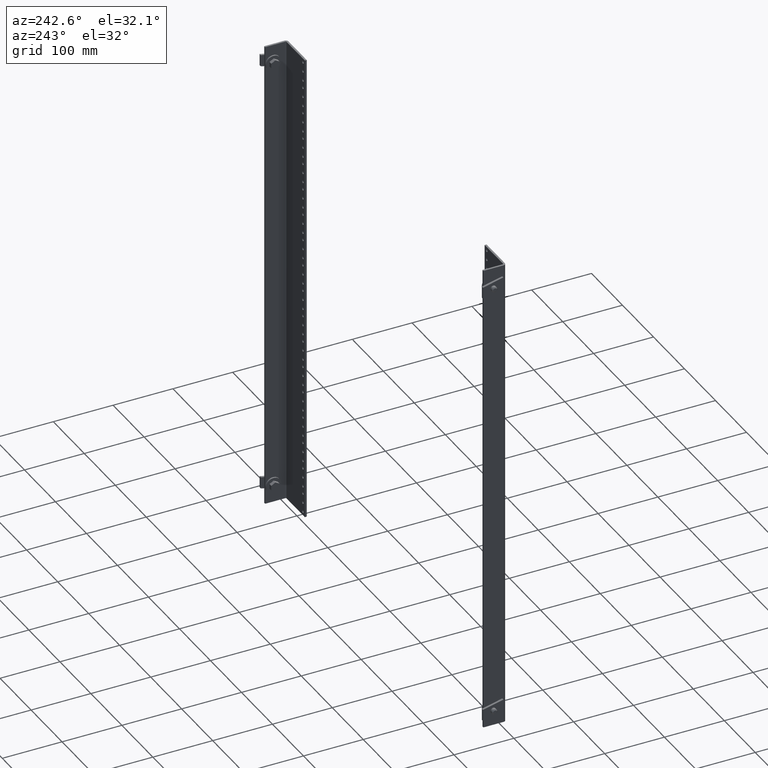
[diagram: clean part render]
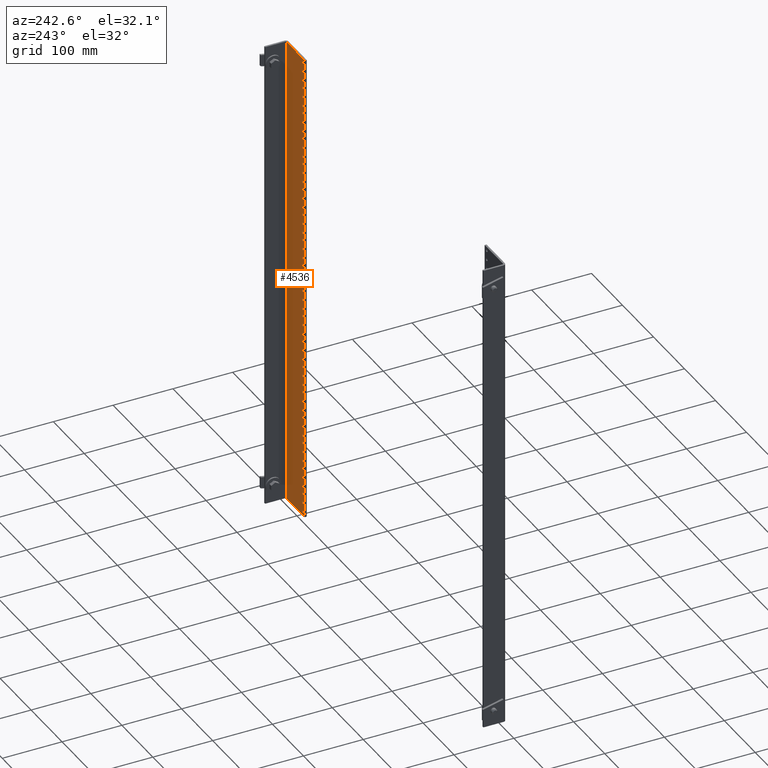
[diagram: same view with one face highlighted and labeled with its STEP entity id]
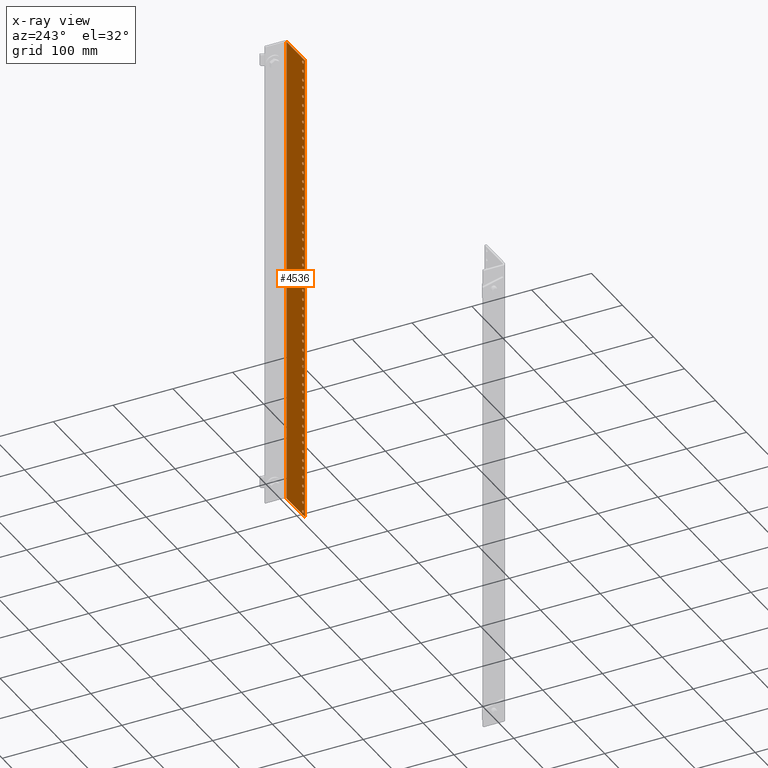
[diagram: x-ray of the same camera — body ghosted, the highlighted face saturated]
A machine part, auxiliary view. The second image highlights one B-rep face of the part: STEP entity #4536.
The next image is the same camera in x-ray: the body ghosted, the highlighted face saturated — about 0% of this face is hidden behind the body in this view.
In plain terms, the highlighted planar face has unit normal (-0, -1, 0).
Its self-contained STEP definition (entity closure, byte-faithful):
#1 = CIRCLE ( 'NONE', #6707, 0.08850000000000002309 ) ;
#54 = EDGE_LOOP ( 'NONE', ( #966, #1590 ) ) ;
#62 = FACE_BOUND ( 'NONE', #54, .T. ) ;
#73 = EDGE_LOOP ( 'NONE', ( #1296, #7900 ) ) ;
#93 = VERTEX_POINT ( 'NONE', #12416 ) ;
#95 = VECTOR ( 'NONE', #11698, 39.37007874015748143 ) ;
#115 = DIRECTION ( 'NONE',  ( 1.000000000000000000, 0.0000000000000000000, 0.0000000000000000000 ) ) ;
#120 = EDGE_LOOP ( 'NONE', ( #3377, #7671 ) ) ;
#123 = EDGE_CURVE ( 'NONE', #5694, #12536, #11691, .T. ) ;
#143 = EDGE_CURVE ( 'NONE', #4721, #11474, #5416, .T. ) ;
#153 = CARTESIAN_POINT ( 'NONE',  ( -1.088500000000000467, 0.1250000000000015821, -10.25000000000000178 ) ) ;
#163 = ORIENTED_EDGE ( 'NONE', *, *, #11466, .T. ) ;
#170 = CARTESIAN_POINT ( 'NONE',  ( -1.088499999999999801, 0.1250000000000015821, 3.250000000000000000 ) ) ;
#177 = CIRCLE ( 'NONE', #388, 0.08850000000000002309 ) ;
#183 = VERTEX_POINT ( 'NONE', #2735 ) ;
#213 = VERTEX_POINT ( 'NONE', #9633 ) ;
#222 = DIRECTION ( 'NONE',  ( 1.000000000000000000, 0.0000000000000000000, 0.0000000000000000000 ) ) ;
#223 = CIRCLE ( 'NONE', #5261, 0.08850000000000002309 ) ;
#226 = AXIS2_PLACEMENT_3D ( 'NONE', #7170, #4089, #12156 ) ;
#238 = CARTESIAN_POINT ( 'NONE',  ( -0.9999999999999998890, 0.1250000000000015821, 2.625000000000000000 ) ) ;
#245 = DIRECTION ( 'NONE',  ( -5.551115123125780237E-17, -1.000000000000000000, 1.191965662373347779E-32 ) ) ;
#253 = FACE_BOUND ( 'NONE', #9833, .T. ) ;
#267 = VERTEX_POINT ( 'NONE', #1561 ) ;
#287 = EDGE_CURVE ( 'NONE', #9872, #3295, #573, .T. ) ;
#298 = DIRECTION ( 'NONE',  ( -5.551115123125780237E-17, -1.000000000000000000, 1.191965662373347779E-32 ) ) ;
#300 = EDGE_CURVE ( 'NONE', #11978, #4245, #3732, .T. ) ;
#306 = DIRECTION ( 'NONE',  ( -5.551115123125780237E-17, -1.000000000000000000, 1.191965662373347779E-32 ) ) ;
#321 = ORIENTED_EDGE ( 'NONE', *, *, #4474, .T. ) ;
#344 = CARTESIAN_POINT ( 'NONE',  ( -1.000000000000000444, 0.1250000000000015821, -14.25000000000000000 ) ) ;
#345 = ORIENTED_EDGE ( 'NONE', *, *, #10697, .T. ) ;
#351 = DIRECTION ( 'NONE',  ( -5.551115123125780237E-17, -1.000000000000000000, 1.191965662373347779E-32 ) ) ;
#358 = DIRECTION ( 'NONE',  ( -5.551115123125780237E-17, -1.000000000000000000, 1.191965662373347779E-32 ) ) ;
#363 = ORIENTED_EDGE ( 'NONE', *, *, #3302, .T. ) ;
#375 = AXIS2_PLACEMENT_3D ( 'NONE', #10785, #727, #11697 ) ;
#387 = EDGE_CURVE ( 'NONE', #11846, #12211, #11278, .T. ) ;
#388 = AXIS2_PLACEMENT_3D ( 'NONE', #11513, #6655, #5613 ) ;
#392 = EDGE_LOOP ( 'NONE', ( #7959, #2369 ) ) ;
#425 = EDGE_CURVE ( 'NONE', #1007, #5927, #4787, .T. ) ;
#427 = DIRECTION ( 'NONE',  ( -5.551115123125780237E-17, -1.000000000000000000, 1.191965662373347779E-32 ) ) ;
#432 = CARTESIAN_POINT ( 'NONE',  ( -1.000000000000000222, 0.1250000000000015821, -6.750000000000000000 ) ) ;
#451 = ORIENTED_EDGE ( 'NONE', *, *, #4386, .T. ) ;
#455 = VERTEX_POINT ( 'NONE', #5488 ) ;
#474 = CARTESIAN_POINT ( 'NONE',  ( -1.000000000000000444, 0.1250000000000015821, -14.87500000000000178 ) ) ;
#481 = DIRECTION ( 'NONE',  ( -5.551115123125780237E-17, -1.000000000000000000, 1.191965662373347779E-32 ) ) ;
#493 = DIRECTION ( 'NONE',  ( -5.551115123125780237E-17, -1.000000000000000000, 1.191965662373347779E-32 ) ) ;
#495 = DIRECTION ( 'NONE',  ( -5.551115123125780237E-17, -1.000000000000000000, 1.191965662373347779E-32 ) ) ;
#527 = ORIENTED_EDGE ( 'NONE', *, *, #6949, .T. ) ;
#528 = CARTESIAN_POINT ( 'NONE',  ( -0.9115000000000004210, 0.1250000000000015821, -13.75000000000000000 ) ) ;
#533 = DIRECTION ( 'NONE',  ( -5.551115123125780237E-17, -1.000000000000000000, 1.191965662373347779E-32 ) ) ;
#542 = EDGE_LOOP ( 'NONE', ( #4425, #3690 ) ) ;
#548 = DIRECTION ( 'NONE',  ( -5.551115123125780237E-17, -1.000000000000000000, 1.191965662373347779E-32 ) ) ;
#573 = CIRCLE ( 'NONE', #5628, 0.08850000000000002309 ) ;
#585 = AXIS2_PLACEMENT_3D ( 'NONE', #11002, #1989, #10072 ) ;
#589 = EDGE_LOOP ( 'NONE', ( #8134, #973 ) ) ;
#596 = VERTEX_POINT ( 'NONE', #2449 ) ;
#608 = EDGE_CURVE ( 'NONE', #596, #1967, #9748, .T. ) ;
#616 = EDGE_CURVE ( 'NONE', #9547, #5640, #177, .T. ) ;
#621 = CIRCLE ( 'NONE', #7151, 0.08850000000000002309 ) ;
#628 = ORIENTED_EDGE ( 'NONE', *, *, #10015, .T. ) ;
#631 = VERTEX_POINT ( 'NONE', #6795 ) ;
#636 = DIRECTION ( 'NONE',  ( -5.551115123125780237E-17, -1.000000000000000000, 1.191965662373347779E-32 ) ) ;
#644 = CIRCLE ( 'NONE', #6323, 0.08850000000000002309 ) ;
#655 = CARTESIAN_POINT ( 'NONE',  ( -1.000000000000000000, 0.1250000000000015821, -0.8750000000000001110 ) ) ;
#694 = EDGE_CURVE ( 'NONE', #13010, #4111, #5842, .T. ) ;
#716 = ORIENTED_EDGE ( 'NONE', *, *, #143, .T. ) ;
#720 = CARTESIAN_POINT ( 'NONE',  ( -0.9114999999999998659, 0.1250000000000015821, 5.500000000000000000 ) ) ;
#722 = CARTESIAN_POINT ( 'NONE',  ( -1.088500000000000245, 0.1250000000000015821, -8.500000000000000000 ) ) ;
#727 = DIRECTION ( 'NONE',  ( -5.551115123125780237E-17, -1.000000000000000000, 1.191965662373347779E-32 ) ) ;
#742 = DIRECTION ( 'NONE',  ( 1.000000000000000000, 0.0000000000000000000, 0.0000000000000000000 ) ) ;
#753 = EDGE_LOOP ( 'NONE', ( #7689, #3333 ) ) ;
#760 = FACE_BOUND ( 'NONE', #10540, .T. ) ;
#771 = AXIS2_PLACEMENT_3D ( 'NONE', #9382, #7289, #3414 ) ;
#775 = EDGE_LOOP ( 'NONE', ( #11868, #2344 ) ) ;
#778 = CARTESIAN_POINT ( 'NONE',  ( -1.088499999999999579, 0.1250000000000015821, 11.37500000000000178 ) ) ;
#782 = DIRECTION ( 'NONE',  ( 1.000000000000000000, 0.0000000000000000000, 0.0000000000000000000 ) ) ;
#786 = DIRECTION ( 'NONE',  ( 1.000000000000000000, 0.0000000000000000000, 0.0000000000000000000 ) ) ;
#798 = DIRECTION ( 'NONE',  ( 1.000000000000000000, 0.0000000000000000000, 0.0000000000000000000 ) ) ;
#806 = CARTESIAN_POINT ( 'NONE',  ( -1.088499999999999801, 0.1250000000000015821, 2.000000000000000000 ) ) ;
#811 = CARTESIAN_POINT ( 'NONE',  ( -0.9114999999999998659, 0.1250000000000015821, 5.000000000000000000 ) ) ;
#814 = EDGE_CURVE ( 'NONE', #10536, #11162, #5634, .T. ) ;
#820 = VERTEX_POINT ( 'NONE', #9878 ) ;
#825 = ORIENTED_EDGE ( 'NONE', *, *, #2148, .T. ) ;
#828 = VERTEX_POINT ( 'NONE', #4904 ) ;
#831 = EDGE_CURVE ( 'NONE', #11474, #4721, #3325, .T. ) ;
#847 = CIRCLE ( 'NONE', #2105, 0.08850000000000002309 ) ;
#853 = CIRCLE ( 'NONE', #10719, 0.08850000000000002309 ) ;
#856 = EDGE_CURVE ( 'NONE', #10392, #7932, #11713, .T. ) ;
#861 = DIRECTION ( 'NONE',  ( 1.000000000000000000, 0.0000000000000000000, 0.0000000000000000000 ) ) ;
#881 = AXIS2_PLACEMENT_3D ( 'NONE', #2312, #2247, #9157 ) ;
#889 = DIRECTION ( 'NONE',  ( 1.000000000000000000, 0.0000000000000000000, 0.0000000000000000000 ) ) ;
#892 = DIRECTION ( 'NONE',  ( 1.000000000000000000, 0.0000000000000000000, 0.0000000000000000000 ) ) ;
#897 = VERTEX_POINT ( 'NONE', #7310 ) ;
#901 = DIRECTION ( 'NONE',  ( 1.000000000000000000, 0.0000000000000000000, 0.0000000000000000000 ) ) ;
#904 = FACE_BOUND ( 'NONE', #10256, .T. ) ;
#909 = AXIS2_PLACEMENT_3D ( 'NONE', #4350, #12563, #1334 ) ;
#920 = CARTESIAN_POINT ( 'NONE',  ( -1.088500000000000467, 0.1250000000000015821, -14.87500000000000178 ) ) ;
#921 = DIRECTION ( 'NONE',  ( 1.000000000000000000, 0.0000000000000000000, 0.0000000000000000000 ) ) ;
#933 = AXIS2_PLACEMENT_3D ( 'NONE', #1810, #11940, #901 ) ;
#946 = EDGE_CURVE ( 'NONE', #9782, #5055, #10247, .T. ) ;
#966 = ORIENTED_EDGE ( 'NONE', *, *, #9123, .T. ) ;
#965 = LINE ( 'NONE', #12878, #6524 ) ;
#973 = ORIENTED_EDGE ( 'NONE', *, *, #8149, .T. ) ;
#984 = CARTESIAN_POINT ( 'NONE',  ( -1.000000000000000222, 0.1250000000000015821, -7.250000000000000888 ) ) ;
#997 = CARTESIAN_POINT ( 'NONE',  ( -1.000000000000000444, 0.1250000000000015821, -15.50000000000000000 ) ) ;
#1002 = EDGE_LOOP ( 'NONE', ( #2377, #5799 ) ) ;
#1007 = VERTEX_POINT ( 'NONE', #153 ) ;
#1025 = EDGE_LOOP ( 'NONE', ( #4498, #716 ) ) ;
#1034 = DIRECTION ( 'NONE',  ( 1.000000000000000000, 0.0000000000000000000, 0.0000000000000000000 ) ) ;
#1049 = CIRCLE ( 'NONE', #12172, 0.08850000000000002309 ) ;
#1058 = AXIS2_PLACEMENT_3D ( 'NONE', #8578, #10561, #7608 ) ;
#1063 = DIRECTION ( 'NONE',  ( -5.551115123125780237E-17, -1.000000000000000000, 1.191965662373347779E-32 ) ) ;
#1068 = DIRECTION ( 'NONE',  ( 1.000000000000000000, 0.0000000000000000000, 0.0000000000000000000 ) ) ;
#1071 = DIRECTION ( 'NONE',  ( -5.551115123125780237E-17, -1.000000000000000000, 1.191965662373347779E-32 ) ) ;
#1075 = DIRECTION ( 'NONE',  ( -5.551115123125780237E-17, -1.000000000000000000, 1.191965662373347779E-32 ) ) ;
#1089 = EDGE_CURVE ( 'NONE', #3295, #9872, #8159, .T. ) ;
#1102 = VERTEX_POINT ( 'NONE', #4685 ) ;
#1104 = EDGE_CURVE ( 'NONE', #2385, #10588, #11502, .T. ) ;
#1105 = FACE_BOUND ( 'NONE', #9094, .T. ) ;
#1133 = EDGE_LOOP ( 'NONE', ( #11109, #9852 ) ) ;
#1164 = EDGE_CURVE ( 'NONE', #12118, #3870, #12783, .T. ) ;
#1197 = DIRECTION ( 'NONE',  ( 1.000000000000000000, 0.0000000000000000000, 0.0000000000000000000 ) ) ;
#1220 = FACE_BOUND ( 'NONE', #3502, .T. ) ;
#1238 = DIRECTION ( 'NONE',  ( 1.000000000000000000, 0.0000000000000000000, 0.0000000000000000000 ) ) ;
#1253 = AXIS2_PLACEMENT_3D ( 'NONE', #11839, #11767, #12827 ) ;
#1276 = AXIS2_PLACEMENT_3D ( 'NONE', #2059, #5534, #12435 ) ;
#1292 = CIRCLE ( 'NONE', #12005, 0.08850000000000002309 ) ;
#1296 = ORIENTED_EDGE ( 'NONE', *, *, #9127, .T. ) ;
#1303 = AXIS2_PLACEMENT_3D ( 'NONE', #11097, #7486, #6501 ) ;
#1325 = VERTEX_POINT ( 'NONE', #11898 ) ;
#1327 = CARTESIAN_POINT ( 'NONE',  ( -0.9114999999999995328, 0.1250000000000015821, 12.50000000000000000 ) ) ;
#1334 = DIRECTION ( 'NONE',  ( 1.000000000000000000, 0.0000000000000000000, 0.0000000000000000000 ) ) ;
#1351 = AXIS2_PLACEMENT_3D ( 'NONE', #12997, #9909, #12875 ) ;
#1361 = CARTESIAN_POINT ( 'NONE',  ( -0.9115000000000000879, 0.1250000000000015821, -2.625000000000000000 ) ) ;
#1373 = CARTESIAN_POINT ( 'NONE',  ( -0.9114999999999995328, 0.1250000000000015821, 10.25000000000000178 ) ) ;
#1396 = EDGE_LOOP ( 'NONE', ( #825, #3433 ) ) ;
#1403 = DIRECTION ( 'NONE',  ( 1.000000000000000000, 0.0000000000000000000, 0.0000000000000000000 ) ) ;
#1444 = AXIS2_PLACEMENT_3D ( 'NONE', #474, #7752, #5659 ) ;
#1448 = CIRCLE ( 'NONE', #10476, 0.08850000000000002309 ) ;
#1470 = CIRCLE ( 'NONE', #10909, 0.08850000000000002309 ) ;
#1491 = AXIS2_PLACEMENT_3D ( 'NONE', #997, #2708, #11986 ) ;
#1521 = ORIENTED_EDGE ( 'NONE', *, *, #1825, .T. ) ;
#1524 = DIRECTION ( 'NONE',  ( -5.551115123125780237E-17, -1.000000000000000000, 1.191965662373347779E-32 ) ) ;
#1561 = CARTESIAN_POINT ( 'NONE',  ( -0.9114999999999996438, 0.1250000000000015821, 9.000000000000000000 ) ) ;
#1589 = ORIENTED_EDGE ( 'NONE', *, *, #8916, .F. ) ;
#1590 = ORIENTED_EDGE ( 'NONE', *, *, #3617, .T. ) ;
#1600 = DIRECTION ( 'NONE',  ( 1.000000000000000000, 0.0000000000000000000, 0.0000000000000000000 ) ) ;
#1624 = CARTESIAN_POINT ( 'NONE',  ( -1.088499999999999579, 0.1250000000000015821, 13.12500000000000178 ) ) ;
#1634 = ORIENTED_EDGE ( 'NONE', *, *, #11507, .T. ) ;
#1665 = CARTESIAN_POINT ( 'NONE',  ( -0.9114999999999998659, 0.1250000000000015821, 3.750000000000000000 ) ) ;
#1666 = CARTESIAN_POINT ( 'NONE',  ( -1.000000000000000444, 0.1250000000000015821, -12.50000000000000000 ) ) ;
#1679 = CIRCLE ( 'NONE', #6723, 0.08850000000000002309 ) ;
#1708 = AXIS2_PLACEMENT_3D ( 'NONE', #2717, #427, #5428 ) ;
#1713 = CARTESIAN_POINT ( 'NONE',  ( -0.9114999999999999769, 0.1250000000000015821, -0.2500000000000007772 ) ) ;
#1716 = AXIS2_PLACEMENT_3D ( 'NONE', #9861, #12826, #3828 ) ;
#1717 = EDGE_CURVE ( 'NONE', #2303, #4802, #8596, .T. ) ;
#1771 = AXIS2_PLACEMENT_3D ( 'NONE', #4110, #1075, #222 ) ;
#1775 = CARTESIAN_POINT ( 'NONE',  ( -1.000000000000000222, 0.1250000000000015821, -5.000000000000000000 ) ) ;
#1780 = VERTEX_POINT ( 'NONE', #811 ) ;
#1790 = CARTESIAN_POINT ( 'NONE',  ( -1.000000000000000444, 0.1250000000000015821, -10.25000000000000178 ) ) ;
#1810 = CARTESIAN_POINT ( 'NONE',  ( -0.9999999999999998890, 0.1250000000000015821, 5.500000000000000000 ) ) ;
#1825 = EDGE_CURVE ( 'NONE', #10840, #5464, #5876, .T. ) ;
#1852 = CARTESIAN_POINT ( 'NONE',  ( -1.088499999999999579, 0.1250000000000015821, 10.25000000000000178 ) ) ;
#1853 = CARTESIAN_POINT ( 'NONE',  ( -0.9999999999999996669, 0.1250000000000015821, 6.750000000000000000 ) ) ;
#1871 = EDGE_CURVE ( 'NONE', #1102, #4217, #11742, .T. ) ;
#1899 = EDGE_CURVE ( 'NONE', #10703, #2390, #10898, .T. ) ;
#1903 = DIRECTION ( 'NONE',  ( -5.551115123125780237E-17, -1.000000000000000000, 1.191965662373347779E-32 ) ) ;
#1931 = AXIS2_PLACEMENT_3D ( 'NONE', #9797, #4618, #786 ) ;
#1958 = CIRCLE ( 'NONE', #10365, 0.08850000000000002309 ) ;
#1967 = VERTEX_POINT ( 'NONE', #5171 ) ;
#1970 = EDGE_CURVE ( 'NONE', #7218, #12447, #1, .T. ) ;
#1976 = CARTESIAN_POINT ( 'NONE',  ( -0.9999999999999995559, 0.1250000000000015821, 12.50000000000000000 ) ) ;
#1984 = ORIENTED_EDGE ( 'NONE', *, *, #1871, .T. ) ;
#1989 = DIRECTION ( 'NONE',  ( -5.551115123125780237E-17, -1.000000000000000000, 1.191965662373347779E-32 ) ) ;
#1998 = CARTESIAN_POINT ( 'NONE',  ( -1.088499999999999579, 0.1250000000000015821, 12.00000000000000178 ) ) ;
#2015 = VERTEX_POINT ( 'NONE', #2516 ) ;
#2020 = DIRECTION ( 'NONE',  ( 1.000000000000000000, 0.0000000000000000000, 0.0000000000000000000 ) ) ;
#2023 = DIRECTION ( 'NONE',  ( -5.551115123125780237E-17, -1.000000000000000000, 1.191965662373347779E-32 ) ) ;
#2059 = CARTESIAN_POINT ( 'NONE',  ( -0.9999999999999995559, 0.1250000000000015821, 10.25000000000000178 ) ) ;
#2061 = ORIENTED_EDGE ( 'NONE', *, *, #3210, .T. ) ;
#2078 = FACE_BOUND ( 'NONE', #12047, .T. ) ;
#2084 = CIRCLE ( 'NONE', #5458, 0.08850000000000002309 ) ;
#2086 = VERTEX_POINT ( 'NONE', #9553 ) ;
#2097 = AXIS2_PLACEMENT_3D ( 'NONE', #12474, #4718, #5439 ) ;
#2099 = CARTESIAN_POINT ( 'NONE',  ( -0.9115000000000005320, 0.1250000000000015821, -14.25000000000000000 ) ) ;
#2102 = AXIS2_PLACEMENT_3D ( 'NONE', #10579, #9390, #12489 ) ;
#2103 = CARTESIAN_POINT ( 'NONE',  ( -1.088499999999999801, 0.1250000000000015821, 2.625000000000000000 ) ) ;
#2105 = AXIS2_PLACEMENT_3D ( 'NONE', #5562, #4634, #8451 ) ;
#2112 = VERTEX_POINT ( 'NONE', #11987 ) ;
#2116 = DIRECTION ( 'NONE',  ( 1.000000000000000000, 0.0000000000000000000, 0.0000000000000000000 ) ) ;
#2146 = EDGE_CURVE ( 'NONE', #5927, #1007, #11334, .T. ) ;
#2148 = EDGE_CURVE ( 'NONE', #9924, #4758, #9451, .T. ) ;
#2165 = DIRECTION ( 'NONE',  ( 1.000000000000000000, 0.0000000000000000000, 0.0000000000000000000 ) ) ;
#2176 = EDGE_CURVE ( 'NONE', #93, #7616, #5255, .T. ) ;
#2177 = CARTESIAN_POINT ( 'NONE',  ( -0.9114999999999995328, 0.1250000000000015821, 10.75000000000000178 ) ) ;
#2184 = CARTESIAN_POINT ( 'NONE',  ( -0.9114999999999998659, 0.1250000000000015821, 2.000000000000000000 ) ) ;
#2199 = ORIENTED_EDGE ( 'NONE', *, *, #9794, .T. ) ;
#2201 = DIRECTION ( 'NONE',  ( 1.000000000000000000, 0.0000000000000000000, 0.0000000000000000000 ) ) ;
#2232 = CARTESIAN_POINT ( 'NONE',  ( -0.9999999999999996669, 0.1250000000000015821, 6.125000000000000000 ) ) ;
#2235 = EDGE_CURVE ( 'NONE', #3542, #9054, #1679, .T. ) ;
#2247 = DIRECTION ( 'NONE',  ( -5.551115123125780237E-17, -1.000000000000000000, 1.191965662373347779E-32 ) ) ;
#2251 = EDGE_LOOP ( 'NONE', ( #9943, #12522, #4893, #1589 ) ) ;
#2276 = EDGE_CURVE ( 'NONE', #3697, #9172, #4213, .T. ) ;
#2285 = EDGE_CURVE ( 'NONE', #12092, #11888, #10700, .T. ) ;
#2287 = EDGE_LOOP ( 'NONE', ( #2061, #12630 ) ) ;
#2298 = CARTESIAN_POINT ( 'NONE',  ( -1.088500000000000245, 0.1250000000000015821, -6.750000000000000000 ) ) ;
#2303 = VERTEX_POINT ( 'NONE', #8597 ) ;
#2312 = CARTESIAN_POINT ( 'NONE',  ( -1.000000000000000222, 0.1250000000000015821, -5.000000000000000000 ) ) ;
#2321 = VERTEX_POINT ( 'NONE', #6686 ) ;
#2342 = VERTEX_POINT ( 'NONE', #1624 ) ;
#2344 = ORIENTED_EDGE ( 'NONE', *, *, #7446, .T. ) ;
#2347 = CARTESIAN_POINT ( 'NONE',  ( -1.088499999999999357, 0.1250000000000015821, 13.75000000000000000 ) ) ;
#2369 = ORIENTED_EDGE ( 'NONE', *, *, #11700, .T. ) ;
#2377 = ORIENTED_EDGE ( 'NONE', *, *, #6838, .T. ) ;
#2381 = AXIS2_PLACEMENT_3D ( 'NONE', #12982, #9891, #889 ) ;
#2385 = VERTEX_POINT ( 'NONE', #8224 ) ;
#2386 = VERTEX_POINT ( 'NONE', #2298 ) ;
#2388 = EDGE_CURVE ( 'NONE', #9060, #11376, #12404, .T. ) ;
#2390 = VERTEX_POINT ( 'NONE', #6382 ) ;
#2396 = CARTESIAN_POINT ( 'NONE',  ( -1.000000000000000444, 0.1250000000000015821, -13.12500000000000178 ) ) ;
#2405 = CARTESIAN_POINT ( 'NONE',  ( -0.9114999999999999769, 0.1250000000000015821, -2.000000000000000000 ) ) ;
#2449 = CARTESIAN_POINT ( 'NONE',  ( -1.249999999999998224, 0.1250000000000000555, -15.75000000000000178 ) ) ;
#2493 = ORIENTED_EDGE ( 'NONE', *, *, #6308, .T. ) ;
#2516 = CARTESIAN_POINT ( 'NONE',  ( -0.9114999999999995328, 0.1250000000000015821, 12.00000000000000178 ) ) ;
#2517 = CARTESIAN_POINT ( 'NONE',  ( -0.9999999999999995559, 0.1250000000000015821, 10.75000000000000178 ) ) ;
#2520 = CIRCLE ( 'NONE', #226, 0.08850000000000002309 ) ;
#2546 = CIRCLE ( 'NONE', #3595, 0.08850000000000002309 ) ;
#2553 = ORIENTED_EDGE ( 'NONE', *, *, #8652, .T. ) ;
#2561 = DIRECTION ( 'NONE',  ( -5.551115123125780237E-17, -1.000000000000000000, 1.191965662373347779E-32 ) ) ;
#2579 = CARTESIAN_POINT ( 'NONE',  ( -1.088500000000000245, 0.1250000000000015821, -9.000000000000000000 ) ) ;
#2584 = DIRECTION ( 'NONE',  ( -5.551115123125780237E-17, -1.000000000000000000, 1.191965662373347779E-32 ) ) ;
#2591 = CIRCLE ( 'NONE', #11827, 0.08850000000000002309 ) ;
#2599 = CIRCLE ( 'NONE', #9955, 0.08850000000000002309 ) ;
#2602 = DIRECTION ( 'NONE',  ( -5.551115123125780237E-17, -1.000000000000000000, 1.191965662373347779E-32 ) ) ;
#2604 = EDGE_CURVE ( 'NONE', #9172, #3697, #3379, .T. ) ;
#2639 = EDGE_LOOP ( 'NONE', ( #12046, #10214 ) ) ;
#2665 = EDGE_CURVE ( 'NONE', #2015, #8540, #2546, .T. ) ;
#2667 = FACE_BOUND ( 'NONE', #7929, .T. ) ;
#2673 = CARTESIAN_POINT ( 'NONE',  ( -0.9114999999999998659, 0.1250000000000015821, 4.375000000000000000 ) ) ;
#2706 = CIRCLE ( 'NONE', #10056, 0.08850000000000002309 ) ;
#2708 = DIRECTION ( 'NONE',  ( -5.551115123125780237E-17, -1.000000000000000000, 1.191965662373347779E-32 ) ) ;
#2716 = DIRECTION ( 'NONE',  ( 1.000000000000000000, 0.0000000000000000000, 0.0000000000000000000 ) ) ;
#2717 = CARTESIAN_POINT ( 'NONE',  ( -1.000000000000000222, 0.1250000000000015821, -9.625000000000000000 ) ) ;
#2731 = VERTEX_POINT ( 'NONE', #12030 ) ;
#2735 = CARTESIAN_POINT ( 'NONE',  ( -0.9115000000000000879, 0.1250000000000015821, -3.750000000000000000 ) ) ;
#2737 = AXIS2_PLACEMENT_3D ( 'NONE', #8732, #2561, #12548 ) ;
#2745 = CIRCLE ( 'NONE', #6318, 0.08850000000000002309 ) ;
#2746 = AXIS2_PLACEMENT_3D ( 'NONE', #9814, #11863, #5881 ) ;
#2748 = EDGE_CURVE ( 'NONE', #11185, #12087, #4871, .T. ) ;
#2786 = DIRECTION ( 'NONE',  ( -5.551115123125780237E-17, -1.000000000000000000, 1.191965662373347779E-32 ) ) ;
#2798 = CARTESIAN_POINT ( 'NONE',  ( -1.088500000000000023, 0.1250000000000015821, 0.2500000000000008327 ) ) ;
#2801 = CARTESIAN_POINT ( 'NONE',  ( -0.9999999999999996669, 0.1250000000000015821, 9.000000000000000000 ) ) ;
#2811 = FACE_BOUND ( 'NONE', #7018, .T. ) ;
#2825 = EDGE_LOOP ( 'NONE', ( #8752, #5318 ) ) ;
#2840 = EDGE_LOOP ( 'NONE', ( #6061, #9190 ) ) ;
#2856 = CARTESIAN_POINT ( 'NONE',  ( -0.9114999999999996438, 0.1250000000000015821, 6.125000000000000000 ) ) ;
#2926 = CIRCLE ( 'NONE', #3550, 0.08850000000000002309 ) ;
#2930 = CIRCLE ( 'NONE', #11116, 0.08850000000000002309 ) ;
#2942 = DIRECTION ( 'NONE',  ( 1.000000000000000000, 0.0000000000000000000, 0.0000000000000000000 ) ) ;
#2983 = DIRECTION ( 'NONE',  ( -5.551115123125780237E-17, -1.000000000000000000, 1.191965662373347779E-32 ) ) ;
#2987 = DIRECTION ( 'NONE',  ( 1.000000000000000000, 0.0000000000000000000, 0.0000000000000000000 ) ) ;
#3009 = ORIENTED_EDGE ( 'NONE', *, *, #6604, .T. ) ;
#3013 = PLANE ( 'NONE',  #7570 ) ;
#3021 = CARTESIAN_POINT ( 'NONE',  ( -0.9999999999999995559, 0.1250000000000015821, 12.00000000000000178 ) ) ;
#3025 = CARTESIAN_POINT ( 'NONE',  ( -0.9999999999999994449, 0.1250000000000015821, 13.75000000000000000 ) ) ;
#3057 = CARTESIAN_POINT ( 'NONE',  ( -1.088500000000000245, 0.1250000000000015821, -4.375000000000000000 ) ) ;
#3068 = ORIENTED_EDGE ( 'NONE', *, *, #10550, .T. ) ;
#3075 = DIRECTION ( 'NONE',  ( -5.551115123125780237E-17, -1.000000000000000000, 1.191965662373347779E-32 ) ) ;
#3097 = EDGE_LOOP ( 'NONE', ( #10820, #11465 ) ) ;
#3103 = ORIENTED_EDGE ( 'NONE', *, *, #12855, .T. ) ;
#3108 = DIRECTION ( 'NONE',  ( 1.000000000000000000, 0.0000000000000000000, 0.0000000000000000000 ) ) ;
#3145 = ORIENTED_EDGE ( 'NONE', *, *, #10134, .T. ) ;
#3150 = AXIS2_PLACEMENT_3D ( 'NONE', #238, #5422, #6213 ) ;
#3151 = EDGE_LOOP ( 'NONE', ( #1984, #5655 ) ) ;
#3165 = AXIS2_PLACEMENT_3D ( 'NONE', #7517, #358, #7463 ) ;
#3195 = CARTESIAN_POINT ( 'NONE',  ( -0.9114999999999998659, 0.1250000000000015821, 3.250000000000000000 ) ) ;
#3210 = EDGE_CURVE ( 'NONE', #12304, #4468, #8233, .T. ) ;
#3214 = FACE_BOUND ( 'NONE', #73, .T. ) ;
#3230 = CARTESIAN_POINT ( 'NONE',  ( -1.088500000000000467, 0.1250000000000015821, -10.75000000000000178 ) ) ;
#3239 = EDGE_LOOP ( 'NONE', ( #10179, #10570 ) ) ;
#3242 = CARTESIAN_POINT ( 'NONE',  ( -1.088500000000000245, 0.1250000000000015821, -3.750000000000000000 ) ) ;
#3255 = DIRECTION ( 'NONE',  ( -5.551115123125780237E-17, -1.000000000000000000, 1.191965662373347779E-32 ) ) ;
#3295 = VERTEX_POINT ( 'NONE', #170 ) ;
#3302 = EDGE_CURVE ( 'NONE', #7105, #455, #4886, .T. ) ;
#3325 = CIRCLE ( 'NONE', #10869, 0.08850000000000002309 ) ;
#3331 = AXIS2_PLACEMENT_3D ( 'NONE', #10592, #3627, #12634 ) ;
#3333 = ORIENTED_EDGE ( 'NONE', *, *, #7983, .T. ) ;
#3335 = ORIENTED_EDGE ( 'NONE', *, *, #7272, .T. ) ;
#3358 = CIRCLE ( 'NONE', #3770, 0.08850000000000002309 ) ;
#3376 = CARTESIAN_POINT ( 'NONE',  ( -1.000000000000000444, 0.1250000000000015821, -12.00000000000000178 ) ) ;
#3377 = ORIENTED_EDGE ( 'NONE', *, *, #10971, .T. ) ;
#3379 = CIRCLE ( 'NONE', #2737, 0.08850000000000002309 ) ;
#3395 = DIRECTION ( 'NONE',  ( -5.551115123125780237E-17, -1.000000000000000000, 1.191965662373347779E-32 ) ) ;
#3414 = DIRECTION ( 'NONE',  ( 1.000000000000000000, 0.0000000000000000000, 0.0000000000000000000 ) ) ;
#3425 = EDGE_CURVE ( 'NONE', #12087, #11185, #6553, .T. ) ;
#3433 = ORIENTED_EDGE ( 'NONE', *, *, #4992, .T. ) ;
#3475 = CARTESIAN_POINT ( 'NONE',  ( -1.000000000000000444, 0.1250000000000015821, -13.75000000000000000 ) ) ;
#3480 = DIRECTION ( 'NONE',  ( 1.000000000000000000, 0.0000000000000000000, 0.0000000000000000000 ) ) ;
#3482 = DIRECTION ( 'NONE',  ( -5.551115123125780237E-17, -1.000000000000000000, 1.191965662373347779E-32 ) ) ;
#3483 = EDGE_CURVE ( 'NONE', #4802, #2303, #8640, .T. ) ;
#3502 = EDGE_LOOP ( 'NONE', ( #7053, #10428 ) ) ;
#3506 = CARTESIAN_POINT ( 'NONE',  ( -0.9114999999999996438, 0.1250000000000015821, 7.250000000000000888 ) ) ;
#3542 = VERTEX_POINT ( 'NONE', #806 ) ;
#3550 = AXIS2_PLACEMENT_3D ( 'NONE', #8701, #8760, #10853 ) ;
#3554 = CARTESIAN_POINT ( 'NONE',  ( -0.9999999999999995559, 0.1250000000000015821, 13.12500000000000178 ) ) ;
#3563 = AXIS2_PLACEMENT_3D ( 'NONE', #1976, #3956, #11179 ) ;
#3577 = CIRCLE ( 'NONE', #1058, 0.08850000000000002309 ) ;
#3595 = AXIS2_PLACEMENT_3D ( 'NONE', #3021, #4872, #1034 ) ;
#3605 = DIRECTION ( 'NONE',  ( -5.551115123125780237E-17, -1.000000000000000000, 1.191965662373347779E-32 ) ) ;
#3611 = CIRCLE ( 'NONE', #1931, 0.08850000000000002309 ) ;
#3617 = EDGE_CURVE ( 'NONE', #11286, #5430, #5725, .T. ) ;
#3627 = DIRECTION ( 'NONE',  ( -5.551115123125780237E-17, -1.000000000000000000, 1.191965662373347779E-32 ) ) ;
#3641 = DIRECTION ( 'NONE',  ( 1.000000000000000000, -5.551115123125780853E-17, -3.431425595409359776E-17 ) ) ;
#3690 = ORIENTED_EDGE ( 'NONE', *, *, #12427, .T. ) ;
#3693 = LINE ( 'NONE', #7700, #95 ) ;
#3697 = VERTEX_POINT ( 'NONE', #3057 ) ;
#3732 = CIRCLE ( 'NONE', #7312, 0.08850000000000002309 ) ;
#3752 = ORIENTED_EDGE ( 'NONE', *, *, #7389, .T. ) ;
#3770 = AXIS2_PLACEMENT_3D ( 'NONE', #1775, #5797, #782 ) ;
#3773 = DIRECTION ( 'NONE',  ( -5.551115123125780237E-17, -1.000000000000000000, 1.191965662373347779E-32 ) ) ;
#3824 = ORIENTED_EDGE ( 'NONE', *, *, #6401, .T. ) ;
#3828 = DIRECTION ( 'NONE',  ( 1.000000000000000000, 0.0000000000000000000, 0.0000000000000000000 ) ) ;
#3829 = EDGE_CURVE ( 'NONE', #8402, #10829, #4054, .T. ) ;
#3837 = ORIENTED_EDGE ( 'NONE', *, *, #10270, .T. ) ;
#3870 = VERTEX_POINT ( 'NONE', #4134 ) ;
#3877 = FACE_BOUND ( 'NONE', #8155, .T. ) ;
#3879 = DIRECTION ( 'NONE',  ( 1.000000000000000000, 0.0000000000000000000, 0.0000000000000000000 ) ) ;
#3890 = CARTESIAN_POINT ( 'NONE',  ( -1.000000000000000000, 0.1250000000000015821, -2.000000000000000000 ) ) ;
#3912 = CARTESIAN_POINT ( 'NONE',  ( -1.000000000000000222, 0.1250000000000015821, -5.500000000000000000 ) ) ;
#3915 = EDGE_CURVE ( 'NONE', #12554, #4665, #5910, .T. ) ;
#3920 = EDGE_CURVE ( 'NONE', #9655, #9313, #10309, .T. ) ;
#3926 = CARTESIAN_POINT ( 'NONE',  ( -1.000000000000000444, 0.1250000000000015821, -14.87500000000000178 ) ) ;
#3936 = FACE_BOUND ( 'NONE', #4068, .T. ) ;
#3956 = DIRECTION ( 'NONE',  ( -5.551115123125780237E-17, -1.000000000000000000, 1.191965662373347779E-32 ) ) ;
#3972 = DIRECTION ( 'NONE',  ( -5.551115123125780237E-17, -1.000000000000000000, 1.191965662373347779E-32 ) ) ;
#4008 = AXIS2_PLACEMENT_3D ( 'NONE', #1853, #12918, #7176 ) ;
#4024 = AXIS2_PLACEMENT_3D ( 'NONE', #8453, #493, #1600 ) ;
#4040 = EDGE_LOOP ( 'NONE', ( #5139, #7470 ) ) ;
#4043 = AXIS2_PLACEMENT_3D ( 'NONE', #7332, #245, #11335 ) ;
#4054 = CIRCLE ( 'NONE', #9465, 0.08850000000000002309 ) ;
#4068 = EDGE_LOOP ( 'NONE', ( #7612, #8484 ) ) ;
#4074 = FACE_BOUND ( 'NONE', #2825, .T. ) ;
#4089 = DIRECTION ( 'NONE',  ( -5.551115123125780237E-17, -1.000000000000000000, 1.191965662373347779E-32 ) ) ;
#4098 = EDGE_LOOP ( 'NONE', ( #628, #7092 ) ) ;
#4109 = CARTESIAN_POINT ( 'NONE',  ( -0.9999999999999998890, 0.1250000000000015821, 2.625000000000000000 ) ) ;
#4110 = CARTESIAN_POINT ( 'NONE',  ( -1.000000000000000444, 0.1250000000000015821, -13.12500000000000178 ) ) ;
#4111 = VERTEX_POINT ( 'NONE', #5189 ) ;
#4115 = ORIENTED_EDGE ( 'NONE', *, *, #9764, .T. ) ;
#4120 = CARTESIAN_POINT ( 'NONE',  ( -1.000000000000000222, 0.1250000000000015821, -6.750000000000000000 ) ) ;
#4126 = VERTEX_POINT ( 'NONE', #5328 ) ;
#4134 = CARTESIAN_POINT ( 'NONE',  ( -1.088499999999999801, 0.1250000000000015821, 4.375000000000000000 ) ) ;
#4151 = EDGE_LOOP ( 'NONE', ( #345, #3068 ) ) ;
#4158 = CARTESIAN_POINT ( 'NONE',  ( -1.088500000000000245, 0.1250000000000015821, -2.625000000000000000 ) ) ;
#4190 = FACE_BOUND ( 'NONE', #7337, .T. ) ;
#4203 = ORIENTED_EDGE ( 'NONE', *, *, #616, .T. ) ;
#4202 = CARTESIAN_POINT ( 'NONE',  ( -1.088500000000000023, 0.1250000000000015821, -0.8750000000000001110 ) ) ;
#4213 = CIRCLE ( 'NONE', #2102, 0.08850000000000002309 ) ;
#4217 = VERTEX_POINT ( 'NONE', #2103 ) ;
#4234 = AXIS2_PLACEMENT_3D ( 'NONE', #11032, #12890, #10181 ) ;
#4240 = EDGE_CURVE ( 'NONE', #213, #10390, #5669, .T. ) ;
#4245 = VERTEX_POINT ( 'NONE', #2177 ) ;
#4247 = DIRECTION ( 'NONE',  ( 1.000000000000000000, 0.0000000000000000000, 0.0000000000000000000 ) ) ;
#4255 = DIRECTION ( 'NONE',  ( -5.551115123125780237E-17, -1.000000000000000000, 1.191965662373347779E-32 ) ) ;
#4265 = FACE_BOUND ( 'NONE', #3097, .T. ) ;
#4267 = DIRECTION ( 'NONE',  ( 1.000000000000000000, 0.0000000000000000000, 0.0000000000000000000 ) ) ;
#4286 = VERTEX_POINT ( 'NONE', #6051 ) ;
#4300 = VERTEX_POINT ( 'NONE', #8151 ) ;
#4305 = EDGE_CURVE ( 'NONE', #9766, #4483, #7344, .T. ) ;
#4338 = CARTESIAN_POINT ( 'NONE',  ( -1.000000000000000000, 0.1250000000000015821, -1.500000000000000222 ) ) ;
#4342 = DIRECTION ( 'NONE',  ( -5.551115123125780237E-17, -1.000000000000000000, 1.191965662373347779E-32 ) ) ;
#4350 = CARTESIAN_POINT ( 'NONE',  ( -0.9999999999999998890, 0.1250000000000015821, 5.000000000000000000 ) ) ;
#4352 = ORIENTED_EDGE ( 'NONE', *, *, #8374, .T. ) ;
#4357 = ORIENTED_EDGE ( 'NONE', *, *, #1089, .T. ) ;
#4386 = EDGE_CURVE ( 'NONE', #7932, #10392, #10932, .T. ) ;
#4425 = ORIENTED_EDGE ( 'NONE', *, *, #4305, .T. ) ;
#4441 = CARTESIAN_POINT ( 'NONE',  ( -0.9114999999999995328, 0.1250000000000015821, 13.12500000000000178 ) ) ;
#4446 = CIRCLE ( 'NONE', #9903, 0.08850000000000002309 ) ;
#4468 = VERTEX_POINT ( 'NONE', #7545 ) ;
#4474 = EDGE_CURVE ( 'NONE', #10211, #183, #5273, .T. ) ;
#4477 = EDGE_CURVE ( 'NONE', #7244, #11180, #965, .T. ) ;
#4483 = VERTEX_POINT ( 'NONE', #9773 ) ;
#4498 = ORIENTED_EDGE ( 'NONE', *, *, #831, .T. ) ;
#4536 = ADVANCED_FACE ( 'NONE', ( #5906, #2667, #13000, #2811, #11737, #3877, #9914, #10964, #6888, #5835, #6681, #8869, #9837, #904, #5715, #7676, #8933, #4859, #4932, #760, #12734, #12941, #7931, #6759, #7731, #3936, #11081, #7152, #1220, #8006, #3214, #4074, #5242, #7220, #10109, #4190, #8268, #7083, #6287, #9062, #253, #12141, #1105, #5125, #62, #8072, #7280, #11025, #12024, #11270, #2078, #5181, #9179, #9124, #4265 ), #3013, .F. ) ;
#4541 = ORIENTED_EDGE ( 'NONE', *, *, #9896, .T. ) ;
#4557 = DIRECTION ( 'NONE',  ( 1.000000000000000000, 0.0000000000000000000, 0.0000000000000000000 ) ) ;
#4566 = DIRECTION ( 'NONE',  ( 1.000000000000000000, 0.0000000000000000000, 0.0000000000000000000 ) ) ;
#4584 = AXIS2_PLACEMENT_3D ( 'NONE', #7443, #11305, #12368 ) ;
#4587 = AXIS2_PLACEMENT_3D ( 'NONE', #7473, #2602, #6614 ) ;
#4618 = DIRECTION ( 'NONE',  ( -5.551115123125780237E-17, -1.000000000000000000, 1.191965662373347779E-32 ) ) ;
#4634 = DIRECTION ( 'NONE',  ( -5.551115123125780237E-17, -1.000000000000000000, 1.191965662373347779E-32 ) ) ;
#4635 = CIRCLE ( 'NONE', #10710, 0.08850000000000002309 ) ;
#4644 = CIRCLE ( 'NONE', #2746, 0.08850000000000002309 ) ;
#4665 = VERTEX_POINT ( 'NONE', #2347 ) ;
#4666 = AXIS2_PLACEMENT_3D ( 'NONE', #9917, #9776, #12945 ) ;
#4681 = ORIENTED_EDGE ( 'NONE', *, *, #7858, .T. ) ;
#4685 = CARTESIAN_POINT ( 'NONE',  ( -0.9114999999999998659, 0.1250000000000015821, 2.625000000000000000 ) ) ;
#4689 = VERTEX_POINT ( 'NONE', #1361 ) ;
#4698 = CARTESIAN_POINT ( 'NONE',  ( -1.000000000000000000, 0.1250000000000015821, -0.2500000000000007772 ) ) ;
#4702 = CARTESIAN_POINT ( 'NONE',  ( -1.088500000000000467, 0.1250000000000015821, -12.50000000000000000 ) ) ;
#4705 = CARTESIAN_POINT ( 'NONE',  ( -0.9999999999999996669, 0.1250000000000015821, 8.500000000000000000 ) ) ;
#4718 = DIRECTION ( 'NONE',  ( -5.551115123125780237E-17, -1.000000000000000000, 1.191965662373347779E-32 ) ) ;
#4721 = VERTEX_POINT ( 'NONE', #2798 ) ;
#4758 = VERTEX_POINT ( 'NONE', #7792 ) ;
#4771 = ORIENTED_EDGE ( 'NONE', *, *, #7284, .T. ) ;
#4775 = CARTESIAN_POINT ( 'NONE',  ( -1.088500000000000245, 0.1250000000000015821, -5.000000000000000000 ) ) ;
#4787 = CIRCLE ( 'NONE', #375, 0.08850000000000002309 ) ;
#4802 = VERTEX_POINT ( 'NONE', #10674 ) ;
#4805 = EDGE_LOOP ( 'NONE', ( #8779, #163 ) ) ;
#4806 = CARTESIAN_POINT ( 'NONE',  ( -0.9114999999999994218, 0.1250000000000015821, 15.50000000000000000 ) ) ;
#4825 = CIRCLE ( 'NONE', #5044, 0.08850000000000002309 ) ;
#4847 = CIRCLE ( 'NONE', #11135, 0.08850000000000002309 ) ;
#4848 = AXIS2_PLACEMENT_3D ( 'NONE', #3475, #6570, #5639 ) ;
#4859 = FACE_BOUND ( 'NONE', #4805, .T. ) ;
#4871 = CIRCLE ( 'NONE', #11573, 0.08850000000000002309 ) ;
#4872 = DIRECTION ( 'NONE',  ( -5.551115123125780237E-17, -1.000000000000000000, 1.191965662373347779E-32 ) ) ;
#4886 = CIRCLE ( 'NONE', #4043, 0.08850000000000002309 ) ;
#4893 = ORIENTED_EDGE ( 'NONE', *, *, #4477, .F. ) ;
#4904 = CARTESIAN_POINT ( 'NONE',  ( -1.088499999999999801, 0.1250000000000015821, 9.000000000000000000 ) ) ;
#4931 = CIRCLE ( 'NONE', #10780, 0.08850000000000002309 ) ;
#4932 = FACE_BOUND ( 'NONE', #3239, .T. ) ;
#4947 = DIRECTION ( 'NONE',  ( -5.551115123125780237E-17, -1.000000000000000000, 1.191965662373347779E-32 ) ) ;
#4960 = CARTESIAN_POINT ( 'NONE',  ( -0.9999999999999998890, 0.1250000000000015821, 2.000000000000000000 ) ) ;
#4970 = CARTESIAN_POINT ( 'NONE',  ( -1.088499999999999801, 0.1250000000000015821, 7.875000000000000888 ) ) ;
#4974 = CARTESIAN_POINT ( 'NONE',  ( -1.000000000000000222, 0.1250000000000015821, -7.250000000000000888 ) ) ;
#4986 = EDGE_LOOP ( 'NONE', ( #3837, #4681 ) ) ;
#4992 = EDGE_CURVE ( 'NONE', #4758, #9924, #2745, .T. ) ;
#5010 = AXIS2_PLACEMENT_3D ( 'NONE', #10723, #5862, #4557 ) ;
#5044 = AXIS2_PLACEMENT_3D ( 'NONE', #7206, #8116, #2201 ) ;
#5055 = VERTEX_POINT ( 'NONE', #720 ) ;
#5060 = AXIS2_PLACEMENT_3D ( 'NONE', #5912, #6893, #5785 ) ;
#5070 = VERTEX_POINT ( 'NONE', #12751 ) ;
#5086 = CIRCLE ( 'NONE', #881, 0.08850000000000002309 ) ;
#5092 = CARTESIAN_POINT ( 'NONE',  ( -0.9999999999999994449, 0.1250000000000015821, 14.87500000000000178 ) ) ;
#5095 = ORIENTED_EDGE ( 'NONE', *, *, #3483, .T. ) ;
#5125 = FACE_BOUND ( 'NONE', #4098, .T. ) ;
#5139 = ORIENTED_EDGE ( 'NONE', *, *, #2146, .T. ) ;
#5140 = CARTESIAN_POINT ( 'NONE',  ( -1.088499999999999357, 0.1250000000000015821, 14.87500000000000178 ) ) ;
#5171 = CARTESIAN_POINT ( 'NONE',  ( 1.064999999999999503, 0.1249999999999999445, -15.75000000000000178 ) ) ;
#5181 = FACE_BOUND ( 'NONE', #7291, .T. ) ;
#5189 = CARTESIAN_POINT ( 'NONE',  ( -1.088499999999999801, 0.1250000000000015821, 9.625000000000000000 ) ) ;
#5216 = DIRECTION ( 'NONE',  ( 1.000000000000000000, 0.0000000000000000000, 0.0000000000000000000 ) ) ;
#5242 = FACE_BOUND ( 'NONE', #8719, .T. ) ;
#5255 = CIRCLE ( 'NONE', #8831, 0.08850000000000002309 ) ;
#5261 = AXIS2_PLACEMENT_3D ( 'NONE', #2801, #11873, #5770 ) ;
#5271 = VERTEX_POINT ( 'NONE', #778 ) ;
#5272 = CARTESIAN_POINT ( 'NONE',  ( -0.9114999999999996438, 0.1250000000000015821, 9.625000000000000000 ) ) ;
#5273 = CIRCLE ( 'NONE', #12199, 0.08850000000000002309 ) ;
#5283 = DIRECTION ( 'NONE',  ( -5.551115123125780237E-17, -1.000000000000000000, 1.191965662373347779E-32 ) ) ;
#5291 = AXIS2_PLACEMENT_3D ( 'NONE', #4974, #3773, #2716 ) ;
#5294 = EDGE_LOOP ( 'NONE', ( #1521, #5791 ) ) ;
#5318 = ORIENTED_EDGE ( 'NONE', *, *, #11512, .T. ) ;
#5322 = EDGE_CURVE ( 'NONE', #12892, #8279, #5498, .T. ) ;
#5328 = CARTESIAN_POINT ( 'NONE',  ( -1.088499999999999801, 0.1250000000000015821, 5.000000000000000000 ) ) ;
#5374 = CARTESIAN_POINT ( 'NONE',  ( -1.088500000000000467, 0.1250000000000015821, -14.25000000000000000 ) ) ;
#5382 = DIRECTION ( 'NONE',  ( -5.551115123125780237E-17, -1.000000000000000000, 1.191965662373347779E-32 ) ) ;
#5400 = CARTESIAN_POINT ( 'NONE',  ( -1.000000000000000222, 0.1250000000000015821, -2.625000000000000000 ) ) ;
#5416 = CIRCLE ( 'NONE', #771, 0.08850000000000002309 ) ;
#5420 = CARTESIAN_POINT ( 'NONE',  ( -1.249999999999999556, 0.1250000000000000555, 15.75000000000000178 ) ) ;
#5422 = DIRECTION ( 'NONE',  ( -5.551115123125780237E-17, -1.000000000000000000, 1.191965662373347779E-32 ) ) ;
#5428 = DIRECTION ( 'NONE',  ( 1.000000000000000000, 0.0000000000000000000, 0.0000000000000000000 ) ) ;
#5430 = VERTEX_POINT ( 'NONE', #1373 ) ;
#5439 = DIRECTION ( 'NONE',  ( 1.000000000000000000, 0.0000000000000000000, 0.0000000000000000000 ) ) ;
#5458 = AXIS2_PLACEMENT_3D ( 'NONE', #12381, #351, #11451 ) ;
#5460 = AXIS2_PLACEMENT_3D ( 'NONE', #7989, #306, #1403 ) ;
#5464 = VERTEX_POINT ( 'NONE', #10691 ) ;
#5480 = VERTEX_POINT ( 'NONE', #10628 ) ;
#5488 = CARTESIAN_POINT ( 'NONE',  ( -0.9115000000000004210, 0.1250000000000015821, -12.00000000000000178 ) ) ;
#5493 = CIRCLE ( 'NONE', #1491, 0.08850000000000002309 ) ;
#5498 = CIRCLE ( 'NONE', #11788, 0.08850000000000002309 ) ;
#5503 = ORIENTED_EDGE ( 'NONE', *, *, #2748, .T. ) ;
#5534 = DIRECTION ( 'NONE',  ( -5.551115123125780237E-17, -1.000000000000000000, 1.191965662373347779E-32 ) ) ;
#5541 = DIRECTION ( 'NONE',  ( 1.000000000000000000, 0.0000000000000000000, 0.0000000000000000000 ) ) ;
#5550 = CIRCLE ( 'NONE', #9324, 0.08850000000000002309 ) ;
#5562 = CARTESIAN_POINT ( 'NONE',  ( -0.9999999999999994449, 0.1250000000000015821, 15.50000000000000000 ) ) ;
#5613 = DIRECTION ( 'NONE',  ( 1.000000000000000000, 0.0000000000000000000, 0.0000000000000000000 ) ) ;
#5628 = AXIS2_PLACEMENT_3D ( 'NONE', #11544, #9711, #10569 ) ;
#5634 = CIRCLE ( 'NONE', #7111, 0.08850000000000002309 ) ;
#5640 = VERTEX_POINT ( 'NONE', #6763 ) ;
#5639 = DIRECTION ( 'NONE',  ( 1.000000000000000000, 0.0000000000000000000, 0.0000000000000000000 ) ) ;
#5655 = ORIENTED_EDGE ( 'NONE', *, *, #6788, .T. ) ;
#5656 = CARTESIAN_POINT ( 'NONE',  ( -0.9114999999999995328, 0.1250000000000015821, 11.37500000000000178 ) ) ;
#5659 = DIRECTION ( 'NONE',  ( 1.000000000000000000, 0.0000000000000000000, 0.0000000000000000000 ) ) ;
#5663 = AXIS2_PLACEMENT_3D ( 'NONE', #6155, #8449, #6352 ) ;
#5664 = EDGE_LOOP ( 'NONE', ( #8584, #12735 ) ) ;
#5669 = CIRCLE ( 'NONE', #3563, 0.08850000000000002309 ) ;
#5677 = DIRECTION ( 'NONE',  ( -5.551115123125780237E-17, -1.000000000000000000, 1.191965662373347779E-32 ) ) ;
#5694 = VERTEX_POINT ( 'NONE', #8936 ) ;
#5715 = FACE_BOUND ( 'NONE', #542, .T. ) ;
#5717 = EDGE_CURVE ( 'NONE', #10156, #4286, #10322, .T. ) ;
#5725 = CIRCLE ( 'NONE', #1276, 0.08850000000000002309 ) ;
#5729 = DIRECTION ( 'NONE',  ( -5.551115123125780237E-17, -1.000000000000000000, 1.191965662373347779E-32 ) ) ;
#5733 = DIRECTION ( 'NONE',  ( -5.551115123125780237E-17, -1.000000000000000000, 1.191965662373347779E-32 ) ) ;
#5749 = AXIS2_PLACEMENT_3D ( 'NONE', #8114, #298, #10273 ) ;
#5762 = DIRECTION ( 'NONE',  ( -5.551115123125780237E-17, -1.000000000000000000, 1.191965662373347779E-32 ) ) ;
#5770 = DIRECTION ( 'NONE',  ( 1.000000000000000000, 0.0000000000000000000, 0.0000000000000000000 ) ) ;
#5774 = AXIS2_PLACEMENT_3D ( 'NONE', #4705, #7711, #5877 ) ;
#5785 = DIRECTION ( 'NONE',  ( 1.000000000000000000, 0.0000000000000000000, 0.0000000000000000000 ) ) ;
#5791 = ORIENTED_EDGE ( 'NONE', *, *, #5993, .T. ) ;
#5797 = DIRECTION ( 'NONE',  ( -5.551115123125780237E-17, -1.000000000000000000, 1.191965662373347779E-32 ) ) ;
#5799 = ORIENTED_EDGE ( 'NONE', *, *, #7133, .T. ) ;
#5810 = DIRECTION ( 'NONE',  ( -5.551115123125780237E-17, -1.000000000000000000, 1.191965662373347779E-32 ) ) ;
#5828 = ORIENTED_EDGE ( 'NONE', *, *, #946, .T. ) ;
#5835 = FACE_BOUND ( 'NONE', #4040, .T. ) ;
#5842 = CIRCLE ( 'NONE', #12775, 0.08850000000000002309 ) ;
#5851 = EDGE_LOOP ( 'NONE', ( #2199, #9576 ) ) ;
#5852 = DIRECTION ( 'NONE',  ( 1.000000000000000000, 0.0000000000000000000, 0.0000000000000000000 ) ) ;
#5862 = DIRECTION ( 'NONE',  ( -5.551115123125780237E-17, -1.000000000000000000, 1.191965662373347779E-32 ) ) ;
#5876 = CIRCLE ( 'NONE', #5460, 0.08850000000000002309 ) ;
#5877 = DIRECTION ( 'NONE',  ( 1.000000000000000000, 0.0000000000000000000, 0.0000000000000000000 ) ) ;
#5881 = DIRECTION ( 'NONE',  ( 1.000000000000000000, 0.0000000000000000000, 0.0000000000000000000 ) ) ;
#5906 = FACE_OUTER_BOUND ( 'NONE', #2251, .T. ) ;
#5910 = CIRCLE ( 'NONE', #7583, 0.08850000000000002309 ) ;
#5912 = CARTESIAN_POINT ( 'NONE',  ( -1.000000000000000444, 0.1250000000000015821, -10.75000000000000178 ) ) ;
#5927 = VERTEX_POINT ( 'NONE', #7606 ) ;
#5930 = CARTESIAN_POINT ( 'NONE',  ( -1.000000000000000000, 0.1250000000000015821, -0.8750000000000001110 ) ) ;
#5949 = DIRECTION ( 'NONE',  ( -5.551115123125780237E-17, -1.000000000000000000, 1.191965662373347779E-32 ) ) ;
#5971 = EDGE_LOOP ( 'NONE', ( #10001, #11749 ) ) ;
#5993 = EDGE_CURVE ( 'NONE', #5464, #10840, #11499, .T. ) ;
#6019 = DIRECTION ( 'NONE',  ( -5.551115123125780237E-17, -1.000000000000000000, 1.191965662373347779E-32 ) ) ;
#6051 = CARTESIAN_POINT ( 'NONE',  ( -0.9114999999999994218, 0.1250000000000015821, 14.25000000000000000 ) ) ;
#6061 = ORIENTED_EDGE ( 'NONE', *, *, #2604, .T. ) ;
#6094 = CIRCLE ( 'NONE', #9444, 0.08850000000000002309 ) ;
#6095 = DIRECTION ( 'NONE',  ( -5.551115123125780853E-17, -1.000000000000000000, 1.191965662373347779E-32 ) ) ;
#6128 = CARTESIAN_POINT ( 'NONE',  ( -0.9114999999999999769, 0.1250000000000015821, -0.8750000000000001110 ) ) ;
#6155 = CARTESIAN_POINT ( 'NONE',  ( -0.9999999999999994449, 0.1250000000000015821, 14.87500000000000178 ) ) ;
#6184 = VERTEX_POINT ( 'NONE', #9965 ) ;
#6191 = DIRECTION ( 'NONE',  ( -5.551115123125780237E-17, -1.000000000000000000, 1.191965662373347779E-32 ) ) ;
#6207 = CARTESIAN_POINT ( 'NONE',  ( -0.9115000000000004210, 0.1250000000000015821, -11.37500000000000178 ) ) ;
#6212 = CARTESIAN_POINT ( 'NONE',  ( -0.9999999999999996669, 0.1250000000000015821, 6.750000000000000000 ) ) ;
#6213 = DIRECTION ( 'NONE',  ( 1.000000000000000000, 0.0000000000000000000, 0.0000000000000000000 ) ) ;
#6235 = ORIENTED_EDGE ( 'NONE', *, *, #1717, .T. ) ;
#6239 = DIRECTION ( 'NONE',  ( -5.551115123125780237E-17, -1.000000000000000000, 1.191965662373347779E-32 ) ) ;
#6285 = AXIS2_PLACEMENT_3D ( 'NONE', #12773, #8637, #12655 ) ;
#6287 = FACE_BOUND ( 'NONE', #1396, .T. ) ;
#6289 = CIRCLE ( 'NONE', #10687, 0.08850000000000002309 ) ;
#6308 = EDGE_CURVE ( 'NONE', #2086, #12631, #12146, .T. ) ;
#6318 = AXIS2_PLACEMENT_3D ( 'NONE', #6212, #10022, #8117 ) ;
#6323 = AXIS2_PLACEMENT_3D ( 'NONE', #9715, #11884, #11673 ) ;
#6352 = DIRECTION ( 'NONE',  ( 1.000000000000000000, 0.0000000000000000000, 0.0000000000000000000 ) ) ;
#6376 = CARTESIAN_POINT ( 'NONE',  ( -0.9115000000000000879, 0.1250000000000015821, -3.250000000000000000 ) ) ;
#6382 = CARTESIAN_POINT ( 'NONE',  ( -0.9114999999999994218, 0.1250000000000015821, 14.87500000000000178 ) ) ;
#6391 = DIRECTION ( 'NONE',  ( 1.000000000000000000, 0.0000000000000000000, 0.0000000000000000000 ) ) ;
#6401 = EDGE_CURVE ( 'NONE', #4245, #11978, #10463, .T. ) ;
#6412 = DIRECTION ( 'NONE',  ( 1.000000000000000000, 0.0000000000000000000, 0.0000000000000000000 ) ) ;
#6422 = EDGE_CURVE ( 'NONE', #11180, #596, #8450, .T. ) ;
#6483 = AXIS2_PLACEMENT_3D ( 'NONE', #2517, #8372, #10353 ) ;
#6486 = EDGE_CURVE ( 'NONE', #11888, #12092, #10261, .T. ) ;
#6491 = EDGE_LOOP ( 'NONE', ( #4203, #12375 ) ) ;
#6501 = DIRECTION ( 'NONE',  ( 1.000000000000000000, 0.0000000000000000000, 0.0000000000000000000 ) ) ;
#6524 = VECTOR ( 'NONE', #10882, 39.37007874015748143 ) ;
#6553 = CIRCLE ( 'NONE', #11748, 0.08850000000000002309 ) ;
#6570 = DIRECTION ( 'NONE',  ( -5.551115123125780237E-17, -1.000000000000000000, 1.191965662373347779E-32 ) ) ;
#6595 = CIRCLE ( 'NONE', #12270, 0.08850000000000002309 ) ;
#6604 = EDGE_CURVE ( 'NONE', #5271, #10567, #2926, .T. ) ;
#6606 = CIRCLE ( 'NONE', #10787, 0.08850000000000002309 ) ;
#6614 = DIRECTION ( 'NONE',  ( 1.000000000000000000, 0.0000000000000000000, 0.0000000000000000000 ) ) ;
#6617 = EDGE_CURVE ( 'NONE', #10567, #5271, #10890, .T. ) ;
#6627 = CARTESIAN_POINT ( 'NONE',  ( -1.088499999999999801, 0.1250000000000015821, 8.500000000000000000 ) ) ;
#6655 = DIRECTION ( 'NONE',  ( -5.551115123125780237E-17, -1.000000000000000000, 1.191965662373347779E-32 ) ) ;
#6681 = FACE_BOUND ( 'NONE', #5851, .T. ) ;
#6686 = CARTESIAN_POINT ( 'NONE',  ( -1.088499999999999357, 0.1250000000000015821, 15.50000000000000000 ) ) ;
#6688 = AXIS2_PLACEMENT_3D ( 'NONE', #9239, #4255, #8259 ) ;
#6697 = VERTEX_POINT ( 'NONE', #4970 ) ;
#6707 = AXIS2_PLACEMENT_3D ( 'NONE', #2396, #9168, #6412 ) ;
#6723 = AXIS2_PLACEMENT_3D ( 'NONE', #8407, #10383, #3480 ) ;
#6759 = FACE_BOUND ( 'NONE', #6491, .T. ) ;
#6763 = CARTESIAN_POINT ( 'NONE',  ( -1.088500000000000023, 0.1250000000000015821, -2.000000000000000000 ) ) ;
#6788 = EDGE_CURVE ( 'NONE', #4217, #1102, #11951, .T. ) ;
#6790 = EDGE_LOOP ( 'NONE', ( #2553, #363 ) ) ;
#6795 = CARTESIAN_POINT ( 'NONE',  ( -1.088500000000000023, 0.1250000000000015821, 1.500000000000000222 ) ) ;
#6806 = CARTESIAN_POINT ( 'NONE',  ( -1.000000000000000222, 0.1250000000000015821, -6.125000000000000000 ) ) ;
#6838 = EDGE_CURVE ( 'NONE', #7638, #2342, #1448, .T. ) ;
#6864 = ORIENTED_EDGE ( 'NONE', *, *, #856, .T. ) ;
#6888 = FACE_BOUND ( 'NONE', #11610, .T. ) ;
#6893 = DIRECTION ( 'NONE',  ( -5.551115123125780237E-17, -1.000000000000000000, 1.191965662373347779E-32 ) ) ;
#6895 = VECTOR ( 'NONE', #3641, 39.37007874015748143 ) ;
#6900 = DIRECTION ( 'NONE',  ( 1.000000000000000000, 0.0000000000000000000, 0.0000000000000000000 ) ) ;
#6904 = CARTESIAN_POINT ( 'NONE',  ( -1.000000000000000222, 0.1250000000000015821, -7.875000000000000888 ) ) ;
#6910 = EDGE_CURVE ( 'NONE', #820, #631, #10903, .T. ) ;
#6917 = VERTEX_POINT ( 'NONE', #1713 ) ;
#6940 = CARTESIAN_POINT ( 'NONE',  ( -0.9115000000000001990, 0.1250000000000015821, -7.250000000000000888 ) ) ;
#6949 = EDGE_CURVE ( 'NONE', #4286, #10156, #8182, .T. ) ;
#6996 = ORIENTED_EDGE ( 'NONE', *, *, #9559, .T. ) ;
#7018 = EDGE_LOOP ( 'NONE', ( #6864, #451 ) ) ;
#7023 = CIRCLE ( 'NONE', #1351, 0.08850000000000002309 ) ;
#7053 = ORIENTED_EDGE ( 'NONE', *, *, #5322, .T. ) ;
#7055 = ORIENTED_EDGE ( 'NONE', *, *, #2285, .T. ) ;
#7059 = DIRECTION ( 'NONE',  ( 1.000000000000000000, 0.0000000000000000000, 0.0000000000000000000 ) ) ;
#7068 = EDGE_CURVE ( 'NONE', #7469, #6184, #3358, .T. ) ;
#7083 = FACE_BOUND ( 'NONE', #5664, .T. ) ;
#7092 = ORIENTED_EDGE ( 'NONE', *, *, #11913, .T. ) ;
#7105 = VERTEX_POINT ( 'NONE', #9256 ) ;
#7111 = AXIS2_PLACEMENT_3D ( 'NONE', #7116, #2983, #11855 ) ;
#7116 = CARTESIAN_POINT ( 'NONE',  ( -0.9999999999999996669, 0.1250000000000015821, 7.250000000000000888 ) ) ;
#7117 = CARTESIAN_POINT ( 'NONE',  ( -1.000000000000000222, 0.1250000000000015821, -5.500000000000000000 ) ) ;
#7132 = CARTESIAN_POINT ( 'NONE',  ( -0.9999999999999998890, 0.1250000000000015821, 3.750000000000000000 ) ) ;
#7133 = EDGE_CURVE ( 'NONE', #2342, #7638, #1049, .T. ) ;
#7143 = CARTESIAN_POINT ( 'NONE',  ( -0.9999999999999998890, 0.1250000000000015821, 3.750000000000000000 ) ) ;
#7151 = AXIS2_PLACEMENT_3D ( 'NONE', #7252, #5283, #1068 ) ;
#7152 = FACE_BOUND ( 'NONE', #1025, .T. ) ;
#7170 = CARTESIAN_POINT ( 'NONE',  ( -1.000000000000000222, 0.1250000000000015821, -7.875000000000000888 ) ) ;
#7176 = DIRECTION ( 'NONE',  ( 1.000000000000000000, 0.0000000000000000000, 0.0000000000000000000 ) ) ;
#7206 = CARTESIAN_POINT ( 'NONE',  ( -1.000000000000000222, 0.1250000000000015821, -8.500000000000000000 ) ) ;
#7218 = VERTEX_POINT ( 'NONE', #9704 ) ;
#7220 = FACE_BOUND ( 'NONE', #2287, .T. ) ;
#7244 = VERTEX_POINT ( 'NONE', #8462 ) ;
#7252 = CARTESIAN_POINT ( 'NONE',  ( -0.9999999999999996669, 0.1250000000000015821, 8.500000000000000000 ) ) ;
#7264 = CARTESIAN_POINT ( 'NONE',  ( -0.9114999999999996438, 0.1250000000000015821, 6.750000000000000000 ) ) ;
#7272 = EDGE_CURVE ( 'NONE', #183, #10211, #3577, .T. ) ;
#7280 = FACE_BOUND ( 'NONE', #7490, .T. ) ;
#7284 = EDGE_CURVE ( 'NONE', #11752, #11667, #10913, .T. ) ;
#7289 = DIRECTION ( 'NONE',  ( -5.551115123125780237E-17, -1.000000000000000000, 1.191965662373347779E-32 ) ) ;
#7291 = EDGE_LOOP ( 'NONE', ( #527, #7898 ) ) ;
#7310 = CARTESIAN_POINT ( 'NONE',  ( -0.9115000000000000879, 0.1250000000000015821, -6.125000000000000000 ) ) ;
#7312 = AXIS2_PLACEMENT_3D ( 'NONE', #12609, #3605, #11815 ) ;
#7314 = DIRECTION ( 'NONE',  ( -5.551115123125780237E-17, -1.000000000000000000, 1.191965662373347779E-32 ) ) ;
#7328 = DIRECTION ( 'NONE',  ( 2.639347723844559412E-17, -1.338478893023559322E-32, -1.000000000000000000 ) ) ;
#7332 = CARTESIAN_POINT ( 'NONE',  ( -1.000000000000000444, 0.1250000000000015821, -12.00000000000000178 ) ) ;
#7337 = EDGE_LOOP ( 'NONE', ( #10459, #4115 ) ) ;
#7340 = CIRCLE ( 'NONE', #7544, 0.08850000000000002309 ) ;
#7344 = CIRCLE ( 'NONE', #9033, 0.08850000000000002309 ) ;
#7389 = EDGE_CURVE ( 'NONE', #828, #267, #223, .T. ) ;
#7393 = DIRECTION ( 'NONE',  ( 1.000000000000000000, 0.0000000000000000000, 0.0000000000000000000 ) ) ;
#7421 = CARTESIAN_POINT ( 'NONE',  ( -1.000000000000000444, 0.1250000000000015821, -11.37500000000000178 ) ) ;
#7443 = CARTESIAN_POINT ( 'NONE',  ( -0.9999999999999998890, 0.1250000000000015821, 5.500000000000000000 ) ) ;
#7446 = EDGE_CURVE ( 'NONE', #10588, #2385, #9652, .T. ) ;
#7463 = DIRECTION ( 'NONE',  ( 1.000000000000000000, 0.0000000000000000000, 0.0000000000000000000 ) ) ;
#7469 = VERTEX_POINT ( 'NONE', #4775 ) ;
#7470 = ORIENTED_EDGE ( 'NONE', *, *, #425, .T. ) ;
#7473 = CARTESIAN_POINT ( 'NONE',  ( -1.000000000000000222, 0.1250000000000015821, -3.250000000000000000 ) ) ;
#7486 = DIRECTION ( 'NONE',  ( -5.551115123125780237E-17, -1.000000000000000000, 1.191965662373347779E-32 ) ) ;
#7489 = DIRECTION ( 'NONE',  ( 1.000000000000000000, 0.0000000000000000000, 0.0000000000000000000 ) ) ;
#7490 = EDGE_LOOP ( 'NONE', ( #11486, #1634 ) ) ;
#7501 = DIRECTION ( 'NONE',  ( 1.000000000000000000, 0.0000000000000000000, 0.0000000000000000000 ) ) ;
#7517 = CARTESIAN_POINT ( 'NONE',  ( -0.9999999999999994449, 0.1250000000000015821, 15.50000000000000000 ) ) ;
#7544 = AXIS2_PLACEMENT_3D ( 'NONE', #4698, #5677, #7706 ) ;
#7545 = CARTESIAN_POINT ( 'NONE',  ( -1.088499999999999801, 0.1250000000000015821, 3.750000000000000000 ) ) ;
#7562 = EDGE_LOOP ( 'NONE', ( #10386, #3145 ) ) ;
#7565 = CARTESIAN_POINT ( 'NONE',  ( -0.9999999999999998890, 0.1250000000000015821, 3.250000000000000000 ) ) ;
#7570 = AXIS2_PLACEMENT_3D ( 'NONE', #9318, #6095, #12082 ) ;
#7583 = AXIS2_PLACEMENT_3D ( 'NONE', #3025, #2023, #6900 ) ;
#7606 = CARTESIAN_POINT ( 'NONE',  ( -0.9115000000000004210, 0.1250000000000015821, -10.25000000000000178 ) ) ;
#7608 = DIRECTION ( 'NONE',  ( 1.000000000000000000, 0.0000000000000000000, 0.0000000000000000000 ) ) ;
#7612 = ORIENTED_EDGE ( 'NONE', *, *, #9203, .T. ) ;
#7616 = VERTEX_POINT ( 'NONE', #10355 ) ;
#7633 = CIRCLE ( 'NONE', #909, 0.08850000000000002309 ) ;
#7636 = EDGE_CURVE ( 'NONE', #2386, #5070, #4847, .T. ) ;
#7638 = VERTEX_POINT ( 'NONE', #4441 ) ;
#7653 = AXIS2_PLACEMENT_3D ( 'NONE', #4960, #8959, #12965 ) ;
#7666 = EDGE_CURVE ( 'NONE', #2321, #10648, #847, .T. ) ;
#7671 = ORIENTED_EDGE ( 'NONE', *, *, #4240, .T. ) ;
#7676 = FACE_BOUND ( 'NONE', #9982, .T. ) ;
#7678 = CARTESIAN_POINT ( 'NONE',  ( -1.000000000000000000, 0.1250000000000015821, -0.2500000000000007772 ) ) ;
#7682 = EDGE_CURVE ( 'NONE', #10648, #2321, #8199, .T. ) ;
#7689 = ORIENTED_EDGE ( 'NONE', *, *, #1970, .T. ) ;
#7700 = CARTESIAN_POINT ( 'NONE',  ( 1.064999999999999503, 0.1249999999999999445, -15.75000000000000178 ) ) ;
#7706 = DIRECTION ( 'NONE',  ( 1.000000000000000000, 0.0000000000000000000, 0.0000000000000000000 ) ) ;
#7707 = CARTESIAN_POINT ( 'NONE',  ( -0.9999999999999996669, 0.1250000000000015821, 9.625000000000000000 ) ) ;
#7711 = DIRECTION ( 'NONE',  ( -5.551115123125780237E-17, -1.000000000000000000, 1.191965662373347779E-32 ) ) ;
#7731 = FACE_BOUND ( 'NONE', #5971, .T. ) ;
#7744 = CARTESIAN_POINT ( 'NONE',  ( -1.000000000000000000, 0.1250000000000015821, 0.8750000000000001110 ) ) ;
#7752 = DIRECTION ( 'NONE',  ( -5.551115123125780237E-17, -1.000000000000000000, 1.191965662373347779E-32 ) ) ;
#7783 = AXIS2_PLACEMENT_3D ( 'NONE', #4338, #3482, #7489 ) ;
#7792 = CARTESIAN_POINT ( 'NONE',  ( -1.088499999999999801, 0.1250000000000015821, 6.750000000000000000 ) ) ;
#7858 = EDGE_CURVE ( 'NONE', #10977, #5480, #10176, .T. ) ;
#7860 = DIRECTION ( 'NONE',  ( 1.000000000000000000, 0.0000000000000000000, 0.0000000000000000000 ) ) ;
#7879 = CARTESIAN_POINT ( 'NONE',  ( -0.9115000000000004210, 0.1250000000000015821, -12.50000000000000000 ) ) ;
#7888 = DIRECTION ( 'NONE',  ( 1.000000000000000000, 0.0000000000000000000, 0.0000000000000000000 ) ) ;
#7898 = ORIENTED_EDGE ( 'NONE', *, *, #5717, .T. ) ;
#7900 = ORIENTED_EDGE ( 'NONE', *, *, #2235, .T. ) ;
#7921 = DIRECTION ( 'NONE',  ( -5.551115123125780237E-17, -1.000000000000000000, 1.191965662373347779E-32 ) ) ;
#7925 = EDGE_LOOP ( 'NONE', ( #12888, #3009 ) ) ;
#7929 = EDGE_LOOP ( 'NONE', ( #8586, #10830 ) ) ;
#7932 = VERTEX_POINT ( 'NONE', #8762 ) ;
#7931 = FACE_BOUND ( 'NONE', #2840, .T. ) ;
#7951 = CARTESIAN_POINT ( 'NONE',  ( -0.9999999999999995559, 0.1250000000000015821, 13.12500000000000178 ) ) ;
#7959 = ORIENTED_EDGE ( 'NONE', *, *, #2665, .T. ) ;
#7983 = EDGE_CURVE ( 'NONE', #12447, #7218, #10768, .T. ) ;
#7989 = CARTESIAN_POINT ( 'NONE',  ( -1.000000000000000222, 0.1250000000000015821, -3.250000000000000000 ) ) ;
#8006 = FACE_BOUND ( 'NONE', #2639, .T. ) ;
#8015 = ORIENTED_EDGE ( 'NONE', *, *, #287, .T. ) ;
#8040 = DIRECTION ( 'NONE',  ( -5.551115123125780237E-17, -1.000000000000000000, 1.191965662373347779E-32 ) ) ;
#8045 = CARTESIAN_POINT ( 'NONE',  ( -1.000000000000000000, 0.1250000000000015821, 0.2500000000000008327 ) ) ;
#8046 = CARTESIAN_POINT ( 'NONE',  ( -0.9999999999999996669, 0.1250000000000015821, 9.625000000000000000 ) ) ;
#8071 = AXIS2_PLACEMENT_3D ( 'NONE', #10064, #1063, #12107 ) ;
#8072 = FACE_BOUND ( 'NONE', #10718, .T. ) ;
#8094 = EDGE_CURVE ( 'NONE', #1780, #4126, #7633, .T. ) ;
#8112 = CARTESIAN_POINT ( 'NONE',  ( -1.088500000000000467, 0.1250000000000015821, -13.12500000000000178 ) ) ;
#8114 = CARTESIAN_POINT ( 'NONE',  ( -1.000000000000000222, 0.1250000000000015821, -2.625000000000000000 ) ) ;
#8116 = DIRECTION ( 'NONE',  ( -5.551115123125780237E-17, -1.000000000000000000, 1.191965662373347779E-32 ) ) ;
#8117 = DIRECTION ( 'NONE',  ( 1.000000000000000000, 0.0000000000000000000, 0.0000000000000000000 ) ) ;
#8134 = ORIENTED_EDGE ( 'NONE', *, *, #387, .T. ) ;
#8137 = ORIENTED_EDGE ( 'NONE', *, *, #3915, .T. ) ;
#8149 = EDGE_CURVE ( 'NONE', #12211, #11846, #1958, .T. ) ;
#8151 = CARTESIAN_POINT ( 'NONE',  ( -1.088500000000000245, 0.1250000000000015821, -7.875000000000000888 ) ) ;
#8155 = EDGE_LOOP ( 'NONE', ( #9466, #5503 ) ) ;
#8159 = CIRCLE ( 'NONE', #10054, 0.08850000000000002309 ) ;
#8182 = CIRCLE ( 'NONE', #1253, 0.08850000000000002309 ) ;
#8199 = CIRCLE ( 'NONE', #3165, 0.08850000000000002309 ) ;
#8224 = CARTESIAN_POINT ( 'NONE',  ( -0.9115000000000005320, 0.1250000000000015821, -14.87500000000000178 ) ) ;
#8233 = CIRCLE ( 'NONE', #9908, 0.08850000000000002309 ) ;
#8259 = DIRECTION ( 'NONE',  ( 1.000000000000000000, 0.0000000000000000000, 0.0000000000000000000 ) ) ;
#8267 = EDGE_LOOP ( 'NONE', ( #10332, #5828 ) ) ;
#8268 = FACE_BOUND ( 'NONE', #8267, .T. ) ;
#8279 = VERTEX_POINT ( 'NONE', #4202 ) ;
#8335 = DIRECTION ( 'NONE',  ( -5.551115123125780237E-17, -1.000000000000000000, 1.191965662373347779E-32 ) ) ;
#8372 = DIRECTION ( 'NONE',  ( -5.551115123125780237E-17, -1.000000000000000000, 1.191965662373347779E-32 ) ) ;
#8374 = EDGE_CURVE ( 'NONE', #897, #11638, #2591, .T. ) ;
#8402 = VERTEX_POINT ( 'NONE', #9959 ) ;
#8403 = CARTESIAN_POINT ( 'NONE',  ( -1.088500000000000023, 0.1250000000000015821, 0.8750000000000001110 ) ) ;
#8407 = CARTESIAN_POINT ( 'NONE',  ( -0.9999999999999998890, 0.1250000000000015821, 2.000000000000000000 ) ) ;
#8428 = DIRECTION ( 'NONE',  ( 1.000000000000000000, 0.0000000000000000000, 0.0000000000000000000 ) ) ;
#8449 = DIRECTION ( 'NONE',  ( -5.551115123125780237E-17, -1.000000000000000000, 1.191965662373347779E-32 ) ) ;
#8450 = LINE ( 'NONE', #11403, #12777 ) ;
#8451 = DIRECTION ( 'NONE',  ( 1.000000000000000000, 0.0000000000000000000, 0.0000000000000000000 ) ) ;
#8453 = CARTESIAN_POINT ( 'NONE',  ( -1.000000000000000444, 0.1250000000000015821, -15.50000000000000000 ) ) ;
#8462 = CARTESIAN_POINT ( 'NONE',  ( 1.065000000000000613, 0.1249999999999999445, 15.75000000000000178 ) ) ;
#8484 = ORIENTED_EDGE ( 'NONE', *, *, #8532, .T. ) ;
#8486 = EDGE_CURVE ( 'NONE', #12631, #2086, #12259, .T. ) ;
#8532 = EDGE_CURVE ( 'NONE', #10314, #4689, #9518, .T. ) ;
#8540 = VERTEX_POINT ( 'NONE', #1998 ) ;
#8541 = DIRECTION ( 'NONE',  ( -5.551115123125780237E-17, -1.000000000000000000, 1.191965662373347779E-32 ) ) ;
#8544 = CARTESIAN_POINT ( 'NONE',  ( -0.9115000000000001990, 0.1250000000000015821, -8.500000000000000000 ) ) ;
#8578 = CARTESIAN_POINT ( 'NONE',  ( -1.000000000000000222, 0.1250000000000015821, -3.750000000000000000 ) ) ;
#8584 = ORIENTED_EDGE ( 'NONE', *, *, #1164, .T. ) ;
#8586 = ORIENTED_EDGE ( 'NONE', *, *, #11292, .T. ) ;
#8595 = CARTESIAN_POINT ( 'NONE',  ( -1.088499999999999579, 0.1250000000000015821, 10.75000000000000178 ) ) ;
#8596 = CIRCLE ( 'NONE', #10693, 0.08850000000000002309 ) ;
#8597 = CARTESIAN_POINT ( 'NONE',  ( -1.088500000000000245, 0.1250000000000015821, -9.625000000000000000 ) ) ;
#8602 = AXIS2_PLACEMENT_3D ( 'NONE', #1790, #5810, #2987 ) ;
#8611 = AXIS2_PLACEMENT_3D ( 'NONE', #3890, #8680, #7888 ) ;
#8637 = DIRECTION ( 'NONE',  ( -5.551115123125780237E-17, -1.000000000000000000, 1.191965662373347779E-32 ) ) ;
#8640 = CIRCLE ( 'NONE', #1708, 0.08850000000000002309 ) ;
#8652 = EDGE_CURVE ( 'NONE', #455, #7105, #6595, .T. ) ;
#8657 = CIRCLE ( 'NONE', #4024, 0.08850000000000002309 ) ;
#8672 = EDGE_CURVE ( 'NONE', #11162, #10536, #5550, .T. ) ;
#8680 = DIRECTION ( 'NONE',  ( -5.551115123125780237E-17, -1.000000000000000000, 1.191965662373347779E-32 ) ) ;
#8701 = CARTESIAN_POINT ( 'NONE',  ( -0.9999999999999995559, 0.1250000000000015821, 11.37500000000000178 ) ) ;
#8704 = EDGE_CURVE ( 'NONE', #631, #820, #4931, .T. ) ;
#8719 = EDGE_LOOP ( 'NONE', ( #8015, #4357 ) ) ;
#8732 = CARTESIAN_POINT ( 'NONE',  ( -1.000000000000000222, 0.1250000000000015821, -4.375000000000000000 ) ) ;
#8752 = ORIENTED_EDGE ( 'NONE', *, *, #3829, .T. ) ;
#8760 = DIRECTION ( 'NONE',  ( -5.551115123125780237E-17, -1.000000000000000000, 1.191965662373347779E-32 ) ) ;
#8762 = CARTESIAN_POINT ( 'NONE',  ( -1.088500000000000467, 0.1250000000000015821, -13.75000000000000000 ) ) ;
#8779 = ORIENTED_EDGE ( 'NONE', *, *, #2176, .T. ) ;
#8831 = AXIS2_PLACEMENT_3D ( 'NONE', #3912, #2786, #798 ) ;
#8869 = FACE_BOUND ( 'NONE', #9000, .T. ) ;
#8916 = EDGE_CURVE ( 'NONE', #1967, #7244, #3693, .T. ) ;
#8933 = FACE_BOUND ( 'NONE', #4151, .T. ) ;
#8936 = CARTESIAN_POINT ( 'NONE',  ( -1.088500000000000467, 0.1250000000000015821, -11.37500000000000178 ) ) ;
#8959 = DIRECTION ( 'NONE',  ( -5.551115123125780237E-17, -1.000000000000000000, 1.191965662373347779E-32 ) ) ;
#8986 = EDGE_CURVE ( 'NONE', #2390, #10703, #2599, .T. ) ;
#8987 = CARTESIAN_POINT ( 'NONE',  ( -1.088499999999999801, 0.1250000000000015821, 6.125000000000000000 ) ) ;
#9000 = EDGE_LOOP ( 'NONE', ( #2493, #12396 ) ) ;
#9028 = CARTESIAN_POINT ( 'NONE',  ( -1.000000000000000000, 0.1250000000000015821, 0.8750000000000001110 ) ) ;
#9033 = AXIS2_PLACEMENT_3D ( 'NONE', #984, #6191, #861 ) ;
#9054 = VERTEX_POINT ( 'NONE', #2184 ) ;
#9060 = VERTEX_POINT ( 'NONE', #12170 ) ;
#9062 = FACE_BOUND ( 'NONE', #1133, .T. ) ;
#9094 = EDGE_LOOP ( 'NONE', ( #12363, #3752 ) ) ;
#9122 = CIRCLE ( 'NONE', #8071, 0.08850000000000002309 ) ;
#9123 = EDGE_CURVE ( 'NONE', #5430, #11286, #9122, .T. ) ;
#9124 = FACE_BOUND ( 'NONE', #9971, .T. ) ;
#9127 = EDGE_CURVE ( 'NONE', #9054, #3542, #11847, .T. ) ;
#9157 = DIRECTION ( 'NONE',  ( 1.000000000000000000, 0.0000000000000000000, 0.0000000000000000000 ) ) ;
#9168 = DIRECTION ( 'NONE',  ( -5.551115123125780237E-17, -1.000000000000000000, 1.191965662373347779E-32 ) ) ;
#9172 = VERTEX_POINT ( 'NONE', #10446 ) ;
#9179 = FACE_BOUND ( 'NONE', #1002, .T. ) ;
#9190 = ORIENTED_EDGE ( 'NONE', *, *, #2276, .T. ) ;
#9203 = EDGE_CURVE ( 'NONE', #4689, #10314, #6606, .T. ) ;
#9208 = ORIENTED_EDGE ( 'NONE', *, *, #7636, .T. ) ;
#9231 = CIRCLE ( 'NONE', #11318, 0.08850000000000002309 ) ;
#9239 = CARTESIAN_POINT ( 'NONE',  ( -1.000000000000000222, 0.1250000000000015821, -9.000000000000000000 ) ) ;
#9256 = CARTESIAN_POINT ( 'NONE',  ( -1.088500000000000467, 0.1250000000000015821, -12.00000000000000178 ) ) ;
#9276 = EDGE_CURVE ( 'NONE', #11376, #9060, #7023, .T. ) ;
#9292 = CARTESIAN_POINT ( 'NONE',  ( -0.9114999999999999769, 0.1250000000000015821, 0.2500000000000008327 ) ) ;
#9304 = EDGE_CURVE ( 'NONE', #5055, #9782, #9964, .T. ) ;
#9313 = VERTEX_POINT ( 'NONE', #8987 ) ;
#9318 = CARTESIAN_POINT ( 'NONE',  ( 1.249999999999999556, 0.1249999999999999306, -15.75000000000000178 ) ) ;
#9324 = AXIS2_PLACEMENT_3D ( 'NONE', #11316, #11505, #7393 ) ;
#9347 = CARTESIAN_POINT ( 'NONE',  ( -0.9115000000000005320, 0.1250000000000015821, -15.50000000000000000 ) ) ;
#9382 = CARTESIAN_POINT ( 'NONE',  ( -1.000000000000000000, 0.1250000000000015821, 0.2500000000000008327 ) ) ;
#9390 = DIRECTION ( 'NONE',  ( -5.551115123125780237E-17, -1.000000000000000000, 1.191965662373347779E-32 ) ) ;
#9431 = VERTEX_POINT ( 'NONE', #10105 ) ;
#9439 = AXIS2_PLACEMENT_3D ( 'NONE', #3926, #7921, #11931 ) ;
#9444 = AXIS2_PLACEMENT_3D ( 'NONE', #6904, #5733, #5852 ) ;
#9451 = CIRCLE ( 'NONE', #4008, 0.08850000000000002309 ) ;
#9465 = AXIS2_PLACEMENT_3D ( 'NONE', #7744, #5729, #9723 ) ;
#9466 = ORIENTED_EDGE ( 'NONE', *, *, #3425, .T. ) ;
#9469 = CIRCLE ( 'NONE', #5291, 0.08850000000000002309 ) ;
#9470 = ORIENTED_EDGE ( 'NONE', *, *, #7682, .T. ) ;
#9518 = CIRCLE ( 'NONE', #5749, 0.08850000000000002309 ) ;
#9540 = CARTESIAN_POINT ( 'NONE',  ( -1.000000000000000000, 0.1250000000000015821, 1.500000000000000222 ) ) ;
#9547 = VERTEX_POINT ( 'NONE', #2405 ) ;
#9553 = CARTESIAN_POINT ( 'NONE',  ( -0.9115000000000001990, 0.1250000000000015821, -9.000000000000000000 ) ) ;
#9554 = CARTESIAN_POINT ( 'NONE',  ( -1.000000000000000444, 0.1250000000000015821, -10.75000000000000178 ) ) ;
#9559 = EDGE_CURVE ( 'NONE', #5070, #2386, #11308, .T. ) ;
#9576 = ORIENTED_EDGE ( 'NONE', *, *, #123, .T. ) ;
#9606 = DIRECTION ( 'NONE',  ( 1.000000000000000000, 0.0000000000000000000, 0.0000000000000000000 ) ) ;
#9616 = DIRECTION ( 'NONE',  ( 1.000000000000000000, 0.0000000000000000000, 0.0000000000000000000 ) ) ;
#9633 = CARTESIAN_POINT ( 'NONE',  ( -1.088499999999999579, 0.1250000000000015821, 12.50000000000000000 ) ) ;
#9632 = DIRECTION ( 'NONE',  ( 1.000000000000000000, 0.0000000000000000000, 0.0000000000000000000 ) ) ;
#9652 = CIRCLE ( 'NONE', #9439, 0.08850000000000002309 ) ;
#9655 = VERTEX_POINT ( 'NONE', #2856 ) ;
#9670 = EDGE_LOOP ( 'NONE', ( #3335, #321 ) ) ;
#9704 = CARTESIAN_POINT ( 'NONE',  ( -0.9115000000000004210, 0.1250000000000015821, -13.12500000000000178 ) ) ;
#9711 = DIRECTION ( 'NONE',  ( -5.551115123125780237E-17, -1.000000000000000000, 1.191965662373347779E-32 ) ) ;
#9715 = CARTESIAN_POINT ( 'NONE',  ( -0.9999999999999995559, 0.1250000000000015821, 12.50000000000000000 ) ) ;
#9723 = DIRECTION ( 'NONE',  ( 1.000000000000000000, 0.0000000000000000000, 0.0000000000000000000 ) ) ;
#9748 = LINE ( 'NONE', #9805, #6895 ) ;
#9764 = EDGE_CURVE ( 'NONE', #4126, #1780, #2706, .T. ) ;
#9766 = VERTEX_POINT ( 'NONE', #6940 ) ;
#9773 = CARTESIAN_POINT ( 'NONE',  ( -1.088500000000000245, 0.1250000000000015821, -7.250000000000000888 ) ) ;
#9776 = DIRECTION ( 'NONE',  ( -5.551115123125780237E-17, -1.000000000000000000, 1.191965662373347779E-32 ) ) ;
#9782 = VERTEX_POINT ( 'NONE', #12781 ) ;
#9794 = EDGE_CURVE ( 'NONE', #12536, #5694, #9231, .T. ) ;
#9797 = CARTESIAN_POINT ( 'NONE',  ( -0.9999999999999994449, 0.1250000000000015821, 13.75000000000000000 ) ) ;
#9805 = CARTESIAN_POINT ( 'NONE',  ( -1.250000000000000666, 0.1250000000000000555, -15.75000000000000178 ) ) ;
#9814 = CARTESIAN_POINT ( 'NONE',  ( -1.000000000000000222, 0.1250000000000015821, -6.125000000000000000 ) ) ;
#9833 = EDGE_LOOP ( 'NONE', ( #11906, #10210 ) ) ;
#9838 = EDGE_LOOP ( 'NONE', ( #4541, #4771 ) ) ;
#9837 = FACE_BOUND ( 'NONE', #9838, .T. ) ;
#9852 = ORIENTED_EDGE ( 'NONE', *, *, #814, .T. ) ;
#9857 = DIRECTION ( 'NONE',  ( 1.000000000000000000, 0.0000000000000000000, 0.0000000000000000000 ) ) ;
#9861 = CARTESIAN_POINT ( 'NONE',  ( -0.9999999999999995559, 0.1250000000000015821, 12.00000000000000178 ) ) ;
#9872 = VERTEX_POINT ( 'NONE', #3195 ) ;
#9878 = CARTESIAN_POINT ( 'NONE',  ( -0.9114999999999999769, 0.1250000000000015821, 1.500000000000000222 ) ) ;
#9891 = DIRECTION ( 'NONE',  ( -5.551115123125780237E-17, -1.000000000000000000, 1.191965662373347779E-32 ) ) ;
#9896 = EDGE_CURVE ( 'NONE', #11667, #11752, #4825, .T. ) ;
#9903 = AXIS2_PLACEMENT_3D ( 'NONE', #9028, #1071, #5216 ) ;
#9908 = AXIS2_PLACEMENT_3D ( 'NONE', #7143, #3395, #115 ) ;
#9909 = DIRECTION ( 'NONE',  ( -5.551115123125780237E-17, -1.000000000000000000, 1.191965662373347779E-32 ) ) ;
#9914 = FACE_BOUND ( 'NONE', #6790, .T. ) ;
#9917 = CARTESIAN_POINT ( 'NONE',  ( -0.9999999999999994449, 0.1250000000000015821, 14.25000000000000000 ) ) ;
#9918 = CIRCLE ( 'NONE', #1716, 0.08850000000000002309 ) ;
#9921 = EDGE_CURVE ( 'NONE', #4468, #12304, #6289, .T. ) ;
#9924 = VERTEX_POINT ( 'NONE', #7264 ) ;
#9943 = ORIENTED_EDGE ( 'NONE', *, *, #608, .F. ) ;
#9955 = AXIS2_PLACEMENT_3D ( 'NONE', #5092, #8040, #12051 ) ;
#9959 = CARTESIAN_POINT ( 'NONE',  ( -0.9114999999999999769, 0.1250000000000015821, 0.8750000000000001110 ) ) ;
#9964 = CIRCLE ( 'NONE', #933, 0.08850000000000002309 ) ;
#9965 = CARTESIAN_POINT ( 'NONE',  ( -0.9115000000000000879, 0.1250000000000015821, -5.000000000000000000 ) ) ;
#9971 = EDGE_LOOP ( 'NONE', ( #9470, #11033 ) ) ;
#9979 = EDGE_CURVE ( 'NONE', #3870, #12118, #2930, .T. ) ;
#9982 = EDGE_LOOP ( 'NONE', ( #6996, #9208 ) ) ;
#10001 = ORIENTED_EDGE ( 'NONE', *, *, #9276, .T. ) ;
#10015 = EDGE_CURVE ( 'NONE', #9431, #6697, #2084, .T. ) ;
#10022 = DIRECTION ( 'NONE',  ( -5.551115123125780237E-17, -1.000000000000000000, 1.191965662373347779E-32 ) ) ;
#10054 = AXIS2_PLACEMENT_3D ( 'NONE', #7565, #1524, #5541 ) ;
#10056 = AXIS2_PLACEMENT_3D ( 'NONE', #11867, #10863, #892 ) ;
#10064 = CARTESIAN_POINT ( 'NONE',  ( -0.9999999999999995559, 0.1250000000000015821, 10.25000000000000178 ) ) ;
#10072 = DIRECTION ( 'NONE',  ( 1.000000000000000000, 0.0000000000000000000, 0.0000000000000000000 ) ) ;
#10086 = DIRECTION ( 'NONE',  ( -5.551115123125780237E-17, -1.000000000000000000, 1.191965662373347779E-32 ) ) ;
#10105 = CARTESIAN_POINT ( 'NONE',  ( -0.9114999999999996438, 0.1250000000000015821, 7.875000000000000888 ) ) ;
#10109 = FACE_BOUND ( 'NONE', #3151, .T. ) ;
#10123 = CIRCLE ( 'NONE', #11169, 0.08850000000000002309 ) ;
#10134 = EDGE_CURVE ( 'NONE', #2112, #6917, #7340, .T. ) ;
#10156 = VERTEX_POINT ( 'NONE', #11983 ) ;
#10158 = DIRECTION ( 'NONE',  ( 1.000000000000000000, 0.0000000000000000000, 0.0000000000000000000 ) ) ;
#10176 = CIRCLE ( 'NONE', #5774, 0.08850000000000002309 ) ;
#10179 = ORIENTED_EDGE ( 'NONE', *, *, #11498, .T. ) ;
#10181 = DIRECTION ( 'NONE',  ( 1.000000000000000000, 0.0000000000000000000, 0.0000000000000000000 ) ) ;
#10210 = ORIENTED_EDGE ( 'NONE', *, *, #11893, .T. ) ;
#10211 = VERTEX_POINT ( 'NONE', #3242 ) ;
#10212 = CARTESIAN_POINT ( 'NONE',  ( -0.9114999999999994218, 0.1250000000000015821, 13.75000000000000000 ) ) ;
#10214 = ORIENTED_EDGE ( 'NONE', *, *, #8704, .T. ) ;
#10247 = CIRCLE ( 'NONE', #4584, 0.08850000000000002309 ) ;
#10256 = EDGE_LOOP ( 'NONE', ( #5095, #6235 ) ) ;
#10261 = CIRCLE ( 'NONE', #11943, 0.08850000000000002309 ) ;
#10265 = DIRECTION ( 'NONE',  ( 1.000000000000000000, 0.0000000000000000000, 0.0000000000000000000 ) ) ;
#10270 = EDGE_CURVE ( 'NONE', #5480, #10977, #621, .T. ) ;
#10273 = DIRECTION ( 'NONE',  ( 1.000000000000000000, 0.0000000000000000000, 0.0000000000000000000 ) ) ;
#10276 = CARTESIAN_POINT ( 'NONE',  ( -1.000000000000000444, 0.1250000000000015821, -11.37500000000000178 ) ) ;
#10309 = CIRCLE ( 'NONE', #4234, 0.08850000000000002309 ) ;
#10314 = VERTEX_POINT ( 'NONE', #4158 ) ;
#10322 = CIRCLE ( 'NONE', #4666, 0.08850000000000002309 ) ;
#10332 = ORIENTED_EDGE ( 'NONE', *, *, #9304, .T. ) ;
#10335 = DIRECTION ( 'NONE',  ( -5.551115123125780237E-17, -1.000000000000000000, 1.191965662373347779E-32 ) ) ;
#10347 = ORIENTED_EDGE ( 'NONE', *, *, #300, .T. ) ;
#10353 = DIRECTION ( 'NONE',  ( 1.000000000000000000, 0.0000000000000000000, 0.0000000000000000000 ) ) ;
#10355 = CARTESIAN_POINT ( 'NONE',  ( -1.088500000000000245, 0.1250000000000015821, -5.500000000000000000 ) ) ;
#10365 = AXIS2_PLACEMENT_3D ( 'NONE', #344, #11310, #7501 ) ;
#10383 = DIRECTION ( 'NONE',  ( -5.551115123125780237E-17, -1.000000000000000000, 1.191965662373347779E-32 ) ) ;
#10386 = ORIENTED_EDGE ( 'NONE', *, *, #11030, .T. ) ;
#10390 = VERTEX_POINT ( 'NONE', #1327 ) ;
#10392 = VERTEX_POINT ( 'NONE', #528 ) ;
#10408 = EDGE_CURVE ( 'NONE', #267, #828, #1470, .T. ) ;
#10428 = ORIENTED_EDGE ( 'NONE', *, *, #10576, .T. ) ;
#10446 = CARTESIAN_POINT ( 'NONE',  ( -0.9115000000000000879, 0.1250000000000015821, -4.375000000000000000 ) ) ;
#10459 = ORIENTED_EDGE ( 'NONE', *, *, #8094, .T. ) ;
#10463 = CIRCLE ( 'NONE', #6483, 0.08850000000000002309 ) ;
#10476 = AXIS2_PLACEMENT_3D ( 'NONE', #3554, #7314, #8428 ) ;
#10536 = VERTEX_POINT ( 'NONE', #10590 ) ;
#10538 = DIRECTION ( 'NONE',  ( 1.000000000000000000, 0.0000000000000000000, 0.0000000000000000000 ) ) ;
#10540 = EDGE_LOOP ( 'NONE', ( #4352, #11301 ) ) ;
#10544 = DIRECTION ( 'NONE',  ( -5.551115123125780237E-17, -1.000000000000000000, 1.191965662373347779E-32 ) ) ;
#10550 = EDGE_CURVE ( 'NONE', #4300, #1325, #6094, .T. ) ;
#10561 = DIRECTION ( 'NONE',  ( -5.551115123125780237E-17, -1.000000000000000000, 1.191965662373347779E-32 ) ) ;
#10567 = VERTEX_POINT ( 'NONE', #5656 ) ;
#10569 = DIRECTION ( 'NONE',  ( 1.000000000000000000, 0.0000000000000000000, 0.0000000000000000000 ) ) ;
#10570 = ORIENTED_EDGE ( 'NONE', *, *, #7068, .T. ) ;
#10576 = EDGE_CURVE ( 'NONE', #8279, #12892, #4635, .T. ) ;
#10579 = CARTESIAN_POINT ( 'NONE',  ( -1.000000000000000222, 0.1250000000000015821, -4.375000000000000000 ) ) ;
#10588 = VERTEX_POINT ( 'NONE', #920 ) ;
#10590 = CARTESIAN_POINT ( 'NONE',  ( -1.088499999999999801, 0.1250000000000015821, 7.250000000000000888 ) ) ;
#10592 = CARTESIAN_POINT ( 'NONE',  ( -0.9999999999999998890, 0.1250000000000015821, 4.375000000000000000 ) ) ;
#10600 = DIRECTION ( 'NONE',  ( -5.551115123125780237E-17, -1.000000000000000000, 1.191965662373347779E-32 ) ) ;
#10628 = CARTESIAN_POINT ( 'NONE',  ( -0.9114999999999996438, 0.1250000000000015821, 8.500000000000000000 ) ) ;
#10629 = EDGE_CURVE ( 'NONE', #5640, #9547, #11343, .T. ) ;
#10648 = VERTEX_POINT ( 'NONE', #4806 ) ;
#10674 = CARTESIAN_POINT ( 'NONE',  ( -0.9115000000000001990, 0.1250000000000015821, -9.625000000000000000 ) ) ;
#10687 = AXIS2_PLACEMENT_3D ( 'NONE', #7132, #10086, #4247 ) ;
#10691 = CARTESIAN_POINT ( 'NONE',  ( -1.088500000000000245, 0.1250000000000015821, -3.250000000000000000 ) ) ;
#10693 = AXIS2_PLACEMENT_3D ( 'NONE', #10866, #6019, #7860 ) ;
#10697 = EDGE_CURVE ( 'NONE', #1325, #4300, #2520, .T. ) ;
#10700 = CIRCLE ( 'NONE', #5060, 0.08850000000000002309 ) ;
#10703 = VERTEX_POINT ( 'NONE', #5140 ) ;
#10710 = AXIS2_PLACEMENT_3D ( 'NONE', #655, #1903, #9857 ) ;
#10718 = EDGE_LOOP ( 'NONE', ( #3824, #10347 ) ) ;
#10719 = AXIS2_PLACEMENT_3D ( 'NONE', #7678, #636, #3879 ) ;
#10723 = CARTESIAN_POINT ( 'NONE',  ( -1.000000000000000444, 0.1250000000000015821, -14.25000000000000000 ) ) ;
#10768 = CIRCLE ( 'NONE', #1771, 0.08850000000000002309 ) ;
#10780 = AXIS2_PLACEMENT_3D ( 'NONE', #12316, #10600, #10538 ) ;
#10785 = CARTESIAN_POINT ( 'NONE',  ( -1.000000000000000444, 0.1250000000000015821, -10.25000000000000178 ) ) ;
#10787 = AXIS2_PLACEMENT_3D ( 'NONE', #5400, #4342, #9632 ) ;
#10820 = ORIENTED_EDGE ( 'NONE', *, *, #8986, .T. ) ;
#10829 = VERTEX_POINT ( 'NONE', #8403 ) ;
#10830 = ORIENTED_EDGE ( 'NONE', *, *, #12182, .T. ) ;
#10840 = VERTEX_POINT ( 'NONE', #6376 ) ;
#10853 = DIRECTION ( 'NONE',  ( 1.000000000000000000, 0.0000000000000000000, 0.0000000000000000000 ) ) ;
#10863 = DIRECTION ( 'NONE',  ( -5.551115123125780237E-17, -1.000000000000000000, 1.191965662373347779E-32 ) ) ;
#10866 = CARTESIAN_POINT ( 'NONE',  ( -1.000000000000000222, 0.1250000000000015821, -9.625000000000000000 ) ) ;
#10869 = AXIS2_PLACEMENT_3D ( 'NONE', #8045, #5949, #2116 ) ;
#10882 = DIRECTION ( 'NONE',  ( -1.000000000000000000, 5.551115123125780853E-17, 3.431425595409359776E-17 ) ) ;
#10890 = CIRCLE ( 'NONE', #6285, 0.08850000000000002309 ) ;
#10898 = CIRCLE ( 'NONE', #5663, 0.08850000000000002309 ) ;
#10903 = CIRCLE ( 'NONE', #11112, 0.08850000000000002309 ) ;
#10909 = AXIS2_PLACEMENT_3D ( 'NONE', #12499, #8541, #6391 ) ;
#10913 = CIRCLE ( 'NONE', #2097, 0.08850000000000002309 ) ;
#10932 = CIRCLE ( 'NONE', #4848, 0.08850000000000002309 ) ;
#10964 = FACE_BOUND ( 'NONE', #753, .T. ) ;
#10971 = EDGE_CURVE ( 'NONE', #10390, #213, #644, .T. ) ;
#10977 = VERTEX_POINT ( 'NONE', #6627 ) ;
#11002 = CARTESIAN_POINT ( 'NONE',  ( -1.000000000000000444, 0.1250000000000015821, -13.75000000000000000 ) ) ;
#11025 = FACE_BOUND ( 'NONE', #392, .T. ) ;
#11028 = CARTESIAN_POINT ( 'NONE',  ( -1.000000000000000444, 0.1250000000000015821, -12.50000000000000000 ) ) ;
#11030 = EDGE_CURVE ( 'NONE', #6917, #2112, #853, .T. ) ;
#11032 = CARTESIAN_POINT ( 'NONE',  ( -0.9999999999999996669, 0.1250000000000015821, 6.125000000000000000 ) ) ;
#11033 = ORIENTED_EDGE ( 'NONE', *, *, #7666, .T. ) ;
#11072 = DIRECTION ( 'NONE',  ( -5.551115123125780237E-17, -1.000000000000000000, 1.191965662373347779E-32 ) ) ;
#11081 = FACE_BOUND ( 'NONE', #7562, .T. ) ;
#11097 = CARTESIAN_POINT ( 'NONE',  ( -0.9999999999999996669, 0.1250000000000015821, 7.875000000000000888 ) ) ;
#11099 = AXIS2_PLACEMENT_3D ( 'NONE', #4109, #3972, #3108 ) ;
#11109 = ORIENTED_EDGE ( 'NONE', *, *, #8672, .T. ) ;
#11112 = AXIS2_PLACEMENT_3D ( 'NONE', #9540, #533, #10265 ) ;
#11116 = AXIS2_PLACEMENT_3D ( 'NONE', #11587, #2584, #12512 ) ;
#11135 = AXIS2_PLACEMENT_3D ( 'NONE', #4120, #11072, #12130 ) ;
#11162 = VERTEX_POINT ( 'NONE', #3506 ) ;
#11169 = AXIS2_PLACEMENT_3D ( 'NONE', #2232, #6239, #1238 ) ;
#11179 = DIRECTION ( 'NONE',  ( 1.000000000000000000, 0.0000000000000000000, 0.0000000000000000000 ) ) ;
#11180 = VERTEX_POINT ( 'NONE', #5420 ) ;
#11185 = VERTEX_POINT ( 'NONE', #4702 ) ;
#11270 = FACE_BOUND ( 'NONE', #7925, .T. ) ;
#11278 = CIRCLE ( 'NONE', #5010, 0.08850000000000002309 ) ;
#11286 = VERTEX_POINT ( 'NONE', #1852 ) ;
#11292 = EDGE_CURVE ( 'NONE', #11548, #2731, #5493, .T. ) ;
#11301 = ORIENTED_EDGE ( 'NONE', *, *, #12335, .T. ) ;
#11305 = DIRECTION ( 'NONE',  ( -5.551115123125780237E-17, -1.000000000000000000, 1.191965662373347779E-32 ) ) ;
#11308 = CIRCLE ( 'NONE', #13005, 0.08850000000000002309 ) ;
#11310 = DIRECTION ( 'NONE',  ( -5.551115123125780237E-17, -1.000000000000000000, 1.191965662373347779E-32 ) ) ;
#11316 = CARTESIAN_POINT ( 'NONE',  ( -0.9999999999999996669, 0.1250000000000015821, 7.250000000000000888 ) ) ;
#11318 = AXIS2_PLACEMENT_3D ( 'NONE', #10276, #3255, #10158 ) ;
#11334 = CIRCLE ( 'NONE', #8602, 0.08850000000000002309 ) ;
#11335 = DIRECTION ( 'NONE',  ( 1.000000000000000000, 0.0000000000000000000, 0.0000000000000000000 ) ) ;
#11343 = CIRCLE ( 'NONE', #8611, 0.08850000000000002309 ) ;
#11376 = VERTEX_POINT ( 'NONE', #12917 ) ;
#11403 = CARTESIAN_POINT ( 'NONE',  ( -1.249999999999999556, 0.1250000000000000555, 15.75000000000000178 ) ) ;
#11451 = DIRECTION ( 'NONE',  ( 1.000000000000000000, 0.0000000000000000000, 0.0000000000000000000 ) ) ;
#11465 = ORIENTED_EDGE ( 'NONE', *, *, #1899, .T. ) ;
#11466 = EDGE_CURVE ( 'NONE', #7616, #93, #12629, .T. ) ;
#11474 = VERTEX_POINT ( 'NONE', #9292 ) ;
#11486 = ORIENTED_EDGE ( 'NONE', *, *, #694, .T. ) ;
#11498 = EDGE_CURVE ( 'NONE', #6184, #7469, #5086, .T. ) ;
#11499 = CIRCLE ( 'NONE', #4587, 0.08850000000000002309 ) ;
#11502 = CIRCLE ( 'NONE', #1444, 0.08850000000000002309 ) ;
#11505 = DIRECTION ( 'NONE',  ( -5.551115123125780237E-17, -1.000000000000000000, 1.191965662373347779E-32 ) ) ;
#11507 = EDGE_CURVE ( 'NONE', #4111, #13010, #1292, .T. ) ;
#11512 = EDGE_CURVE ( 'NONE', #10829, #8402, #4446, .T. ) ;
#11513 = CARTESIAN_POINT ( 'NONE',  ( -1.000000000000000000, 0.1250000000000015821, -2.000000000000000000 ) ) ;
#11544 = CARTESIAN_POINT ( 'NONE',  ( -0.9999999999999998890, 0.1250000000000015821, 3.250000000000000000 ) ) ;
#11548 = VERTEX_POINT ( 'NONE', #9347 ) ;
#11568 = AXIS2_PLACEMENT_3D ( 'NONE', #7117, #12180, #7059 ) ;
#11573 = AXIS2_PLACEMENT_3D ( 'NONE', #11028, #3075, #2020 ) ;
#11587 = CARTESIAN_POINT ( 'NONE',  ( -0.9999999999999998890, 0.1250000000000015821, 4.375000000000000000 ) ) ;
#11610 = EDGE_LOOP ( 'NONE', ( #7055, #11680 ) ) ;
#11638 = VERTEX_POINT ( 'NONE', #12501 ) ;
#11667 = VERTEX_POINT ( 'NONE', #8544 ) ;
#11673 = DIRECTION ( 'NONE',  ( 1.000000000000000000, 0.0000000000000000000, 0.0000000000000000000 ) ) ;
#11680 = ORIENTED_EDGE ( 'NONE', *, *, #6486, .T. ) ;
#11691 = CIRCLE ( 'NONE', #12336, 0.08850000000000002309 ) ;
#11697 = DIRECTION ( 'NONE',  ( 1.000000000000000000, 0.0000000000000000000, 0.0000000000000000000 ) ) ;
#11698 = DIRECTION ( 'NONE',  ( 3.431425595409359776E-17, 1.001483277207770012E-32, 1.000000000000000000 ) ) ;
#11700 = EDGE_CURVE ( 'NONE', #8540, #2015, #9918, .T. ) ;
#11713 = CIRCLE ( 'NONE', #585, 0.08850000000000002309 ) ;
#11716 = DIRECTION ( 'NONE',  ( 1.000000000000000000, 0.0000000000000000000, 0.0000000000000000000 ) ) ;
#11737 = FACE_BOUND ( 'NONE', #775, .T. ) ;
#11742 = CIRCLE ( 'NONE', #3150, 0.08850000000000002309 ) ;
#11748 = AXIS2_PLACEMENT_3D ( 'NONE', #1666, #12465, #11716 ) ;
#11749 = ORIENTED_EDGE ( 'NONE', *, *, #2388, .T. ) ;
#11752 = VERTEX_POINT ( 'NONE', #722 ) ;
#11767 = DIRECTION ( 'NONE',  ( -5.551115123125780237E-17, -1.000000000000000000, 1.191965662373347779E-32 ) ) ;
#11788 = AXIS2_PLACEMENT_3D ( 'NONE', #5930, #4947, #921 ) ;
#11815 = DIRECTION ( 'NONE',  ( 1.000000000000000000, 0.0000000000000000000, 0.0000000000000000000 ) ) ;
#11827 = AXIS2_PLACEMENT_3D ( 'NONE', #6806, #5762, #742 ) ;
#11839 = CARTESIAN_POINT ( 'NONE',  ( -0.9999999999999994449, 0.1250000000000015821, 14.25000000000000000 ) ) ;
#11846 = VERTEX_POINT ( 'NONE', #2099 ) ;
#11847 = CIRCLE ( 'NONE', #7653, 0.08850000000000002309 ) ;
#11855 = DIRECTION ( 'NONE',  ( 1.000000000000000000, 0.0000000000000000000, 0.0000000000000000000 ) ) ;
#11863 = DIRECTION ( 'NONE',  ( -5.551115123125780237E-17, -1.000000000000000000, 1.191965662373347779E-32 ) ) ;
#11867 = CARTESIAN_POINT ( 'NONE',  ( -0.9999999999999998890, 0.1250000000000015821, 5.000000000000000000 ) ) ;
#11868 = ORIENTED_EDGE ( 'NONE', *, *, #1104, .T. ) ;
#11873 = DIRECTION ( 'NONE',  ( -5.551115123125780237E-17, -1.000000000000000000, 1.191965662373347779E-32 ) ) ;
#11882 = DIRECTION ( 'NONE',  ( -5.551115123125780237E-17, -1.000000000000000000, 1.191965662373347779E-32 ) ) ;
#11884 = DIRECTION ( 'NONE',  ( -5.551115123125780237E-17, -1.000000000000000000, 1.191965662373347779E-32 ) ) ;
#11888 = VERTEX_POINT ( 'NONE', #3230 ) ;
#11893 = EDGE_CURVE ( 'NONE', #9313, #9655, #10123, .T. ) ;
#11898 = CARTESIAN_POINT ( 'NONE',  ( -0.9115000000000001990, 0.1250000000000015821, -7.875000000000000888 ) ) ;
#11906 = ORIENTED_EDGE ( 'NONE', *, *, #3920, .T. ) ;
#11913 = EDGE_CURVE ( 'NONE', #6697, #9431, #12861, .T. ) ;
#11931 = DIRECTION ( 'NONE',  ( 1.000000000000000000, 0.0000000000000000000, 0.0000000000000000000 ) ) ;
#11940 = DIRECTION ( 'NONE',  ( -5.551115123125780237E-17, -1.000000000000000000, 1.191965662373347779E-32 ) ) ;
#11943 = AXIS2_PLACEMENT_3D ( 'NONE', #9554, #548, #4566 ) ;
#11951 = CIRCLE ( 'NONE', #11099, 0.08850000000000002309 ) ;
#11978 = VERTEX_POINT ( 'NONE', #8595 ) ;
#11983 = CARTESIAN_POINT ( 'NONE',  ( -1.088499999999999357, 0.1250000000000015821, 14.25000000000000000 ) ) ;
#11986 = DIRECTION ( 'NONE',  ( 1.000000000000000000, 0.0000000000000000000, 0.0000000000000000000 ) ) ;
#11987 = CARTESIAN_POINT ( 'NONE',  ( -1.088500000000000023, 0.1250000000000015821, -0.2500000000000007772 ) ) ;
#12005 = AXIS2_PLACEMENT_3D ( 'NONE', #8046, #10335, #1197 ) ;
#12024 = FACE_BOUND ( 'NONE', #120, .T. ) ;
#12030 = CARTESIAN_POINT ( 'NONE',  ( -1.088500000000000467, 0.1250000000000015821, -15.50000000000000000 ) ) ;
#12046 = ORIENTED_EDGE ( 'NONE', *, *, #6910, .T. ) ;
#12047 = EDGE_LOOP ( 'NONE', ( #8137, #3103 ) ) ;
#12051 = DIRECTION ( 'NONE',  ( 1.000000000000000000, 0.0000000000000000000, 0.0000000000000000000 ) ) ;
#12082 = DIRECTION ( 'NONE',  ( 1.000000000000000000, -5.551115123125780853E-17, -3.431425595409359776E-17 ) ) ;
#12087 = VERTEX_POINT ( 'NONE', #7879 ) ;
#12092 = VERTEX_POINT ( 'NONE', #12807 ) ;
#12107 = DIRECTION ( 'NONE',  ( 1.000000000000000000, 0.0000000000000000000, 0.0000000000000000000 ) ) ;
#12118 = VERTEX_POINT ( 'NONE', #2673 ) ;
#12130 = DIRECTION ( 'NONE',  ( 1.000000000000000000, 0.0000000000000000000, 0.0000000000000000000 ) ) ;
#12141 = FACE_BOUND ( 'NONE', #4986, .T. ) ;
#12146 = CIRCLE ( 'NONE', #6688, 0.08850000000000002309 ) ;
#12156 = DIRECTION ( 'NONE',  ( 1.000000000000000000, 0.0000000000000000000, 0.0000000000000000000 ) ) ;
#12170 = CARTESIAN_POINT ( 'NONE',  ( -1.088500000000000023, 0.1250000000000015821, -1.500000000000000222 ) ) ;
#12172 = AXIS2_PLACEMENT_3D ( 'NONE', #7951, #5382, #4267 ) ;
#12180 = DIRECTION ( 'NONE',  ( -5.551115123125780237E-17, -1.000000000000000000, 1.191965662373347779E-32 ) ) ;
#12182 = EDGE_CURVE ( 'NONE', #2731, #11548, #8657, .T. ) ;
#12199 = AXIS2_PLACEMENT_3D ( 'NONE', #12802, #11882, #2942 ) ;
#12211 = VERTEX_POINT ( 'NONE', #5374 ) ;
#12259 = CIRCLE ( 'NONE', #2381, 0.08850000000000002309 ) ;
#12270 = AXIS2_PLACEMENT_3D ( 'NONE', #3376, #481, #12451 ) ;
#12304 = VERTEX_POINT ( 'NONE', #1665 ) ;
#12316 = CARTESIAN_POINT ( 'NONE',  ( -1.000000000000000000, 0.1250000000000015821, 1.500000000000000222 ) ) ;
#12335 = EDGE_CURVE ( 'NONE', #11638, #897, #4644, .T. ) ;
#12336 = AXIS2_PLACEMENT_3D ( 'NONE', #7421, #8335, #2165 ) ;
#12363 = ORIENTED_EDGE ( 'NONE', *, *, #10408, .T. ) ;
#12368 = DIRECTION ( 'NONE',  ( 1.000000000000000000, 0.0000000000000000000, 0.0000000000000000000 ) ) ;
#12375 = ORIENTED_EDGE ( 'NONE', *, *, #10629, .T. ) ;
#12381 = CARTESIAN_POINT ( 'NONE',  ( -0.9999999999999996669, 0.1250000000000015821, 7.875000000000000888 ) ) ;
#12396 = ORIENTED_EDGE ( 'NONE', *, *, #8486, .T. ) ;
#12404 = CIRCLE ( 'NONE', #7783, 0.08850000000000002309 ) ;
#12416 = CARTESIAN_POINT ( 'NONE',  ( -0.9115000000000000879, 0.1250000000000015821, -5.500000000000000000 ) ) ;
#12427 = EDGE_CURVE ( 'NONE', #4483, #9766, #9469, .T. ) ;
#12435 = DIRECTION ( 'NONE',  ( 1.000000000000000000, 0.0000000000000000000, 0.0000000000000000000 ) ) ;
#12447 = VERTEX_POINT ( 'NONE', #8112 ) ;
#12451 = DIRECTION ( 'NONE',  ( 1.000000000000000000, 0.0000000000000000000, 0.0000000000000000000 ) ) ;
#12465 = DIRECTION ( 'NONE',  ( -5.551115123125780237E-17, -1.000000000000000000, 1.191965662373347779E-32 ) ) ;
#12474 = CARTESIAN_POINT ( 'NONE',  ( -1.000000000000000222, 0.1250000000000015821, -8.500000000000000000 ) ) ;
#12489 = DIRECTION ( 'NONE',  ( 1.000000000000000000, 0.0000000000000000000, 0.0000000000000000000 ) ) ;
#12499 = CARTESIAN_POINT ( 'NONE',  ( -0.9999999999999996669, 0.1250000000000015821, 9.000000000000000000 ) ) ;
#12501 = CARTESIAN_POINT ( 'NONE',  ( -1.088500000000000245, 0.1250000000000015821, -6.125000000000000000 ) ) ;
#12512 = DIRECTION ( 'NONE',  ( 1.000000000000000000, 0.0000000000000000000, 0.0000000000000000000 ) ) ;
#12522 = ORIENTED_EDGE ( 'NONE', *, *, #6422, .F. ) ;
#12536 = VERTEX_POINT ( 'NONE', #6207 ) ;
#12548 = DIRECTION ( 'NONE',  ( 1.000000000000000000, 0.0000000000000000000, 0.0000000000000000000 ) ) ;
#12554 = VERTEX_POINT ( 'NONE', #10212 ) ;
#12563 = DIRECTION ( 'NONE',  ( -5.551115123125780237E-17, -1.000000000000000000, 1.191965662373347779E-32 ) ) ;
#12609 = CARTESIAN_POINT ( 'NONE',  ( -0.9999999999999995559, 0.1250000000000015821, 10.75000000000000178 ) ) ;
#12629 = CIRCLE ( 'NONE', #11568, 0.08850000000000002309 ) ;
#12630 = ORIENTED_EDGE ( 'NONE', *, *, #9921, .T. ) ;
#12631 = VERTEX_POINT ( 'NONE', #2579 ) ;
#12634 = DIRECTION ( 'NONE',  ( 1.000000000000000000, 0.0000000000000000000, 0.0000000000000000000 ) ) ;
#12655 = DIRECTION ( 'NONE',  ( 1.000000000000000000, 0.0000000000000000000, 0.0000000000000000000 ) ) ;
#12735 = ORIENTED_EDGE ( 'NONE', *, *, #9979, .T. ) ;
#12734 = FACE_BOUND ( 'NONE', #9670, .T. ) ;
#12751 = CARTESIAN_POINT ( 'NONE',  ( -0.9115000000000001990, 0.1250000000000015821, -6.750000000000000000 ) ) ;
#12773 = CARTESIAN_POINT ( 'NONE',  ( -0.9999999999999995559, 0.1250000000000015821, 11.37500000000000178 ) ) ;
#12775 = AXIS2_PLACEMENT_3D ( 'NONE', #7707, #10544, #9606 ) ;
#12777 = VECTOR ( 'NONE', #7328, 39.37007874015748143 ) ;
#12781 = CARTESIAN_POINT ( 'NONE',  ( -1.088499999999999801, 0.1250000000000015821, 5.500000000000000000 ) ) ;
#12783 = CIRCLE ( 'NONE', #3331, 0.08850000000000002309 ) ;
#12802 = CARTESIAN_POINT ( 'NONE',  ( -1.000000000000000222, 0.1250000000000015821, -3.750000000000000000 ) ) ;
#12807 = CARTESIAN_POINT ( 'NONE',  ( -0.9115000000000004210, 0.1250000000000015821, -10.75000000000000178 ) ) ;
#12826 = DIRECTION ( 'NONE',  ( -5.551115123125780237E-17, -1.000000000000000000, 1.191965662373347779E-32 ) ) ;
#12827 = DIRECTION ( 'NONE',  ( 1.000000000000000000, 0.0000000000000000000, 0.0000000000000000000 ) ) ;
#12855 = EDGE_CURVE ( 'NONE', #4665, #12554, #3611, .T. ) ;
#12861 = CIRCLE ( 'NONE', #1303, 0.08850000000000002309 ) ;
#12875 = DIRECTION ( 'NONE',  ( 1.000000000000000000, 0.0000000000000000000, 0.0000000000000000000 ) ) ;
#12878 = CARTESIAN_POINT ( 'NONE',  ( 1.250000000000000666, 0.1249999999999999306, 15.75000000000000178 ) ) ;
#12888 = ORIENTED_EDGE ( 'NONE', *, *, #6617, .T. ) ;
#12890 = DIRECTION ( 'NONE',  ( -5.551115123125780237E-17, -1.000000000000000000, 1.191965662373347779E-32 ) ) ;
#12892 = VERTEX_POINT ( 'NONE', #6128 ) ;
#12917 = CARTESIAN_POINT ( 'NONE',  ( -0.9114999999999999769, 0.1250000000000015821, -1.500000000000000222 ) ) ;
#12918 = DIRECTION ( 'NONE',  ( -5.551115123125780237E-17, -1.000000000000000000, 1.191965662373347779E-32 ) ) ;
#12941 = FACE_BOUND ( 'NONE', #5294, .T. ) ;
#12945 = DIRECTION ( 'NONE',  ( 1.000000000000000000, 0.0000000000000000000, 0.0000000000000000000 ) ) ;
#12965 = DIRECTION ( 'NONE',  ( 1.000000000000000000, 0.0000000000000000000, 0.0000000000000000000 ) ) ;
#12982 = CARTESIAN_POINT ( 'NONE',  ( -1.000000000000000222, 0.1250000000000015821, -9.000000000000000000 ) ) ;
#12997 = CARTESIAN_POINT ( 'NONE',  ( -1.000000000000000000, 0.1250000000000015821, -1.500000000000000222 ) ) ;
#13000 = FACE_BOUND ( 'NONE', #589, .T. ) ;
#13005 = AXIS2_PLACEMENT_3D ( 'NONE', #432, #495, #9616 ) ;
#13010 = VERTEX_POINT ( 'NONE', #5272 ) ;